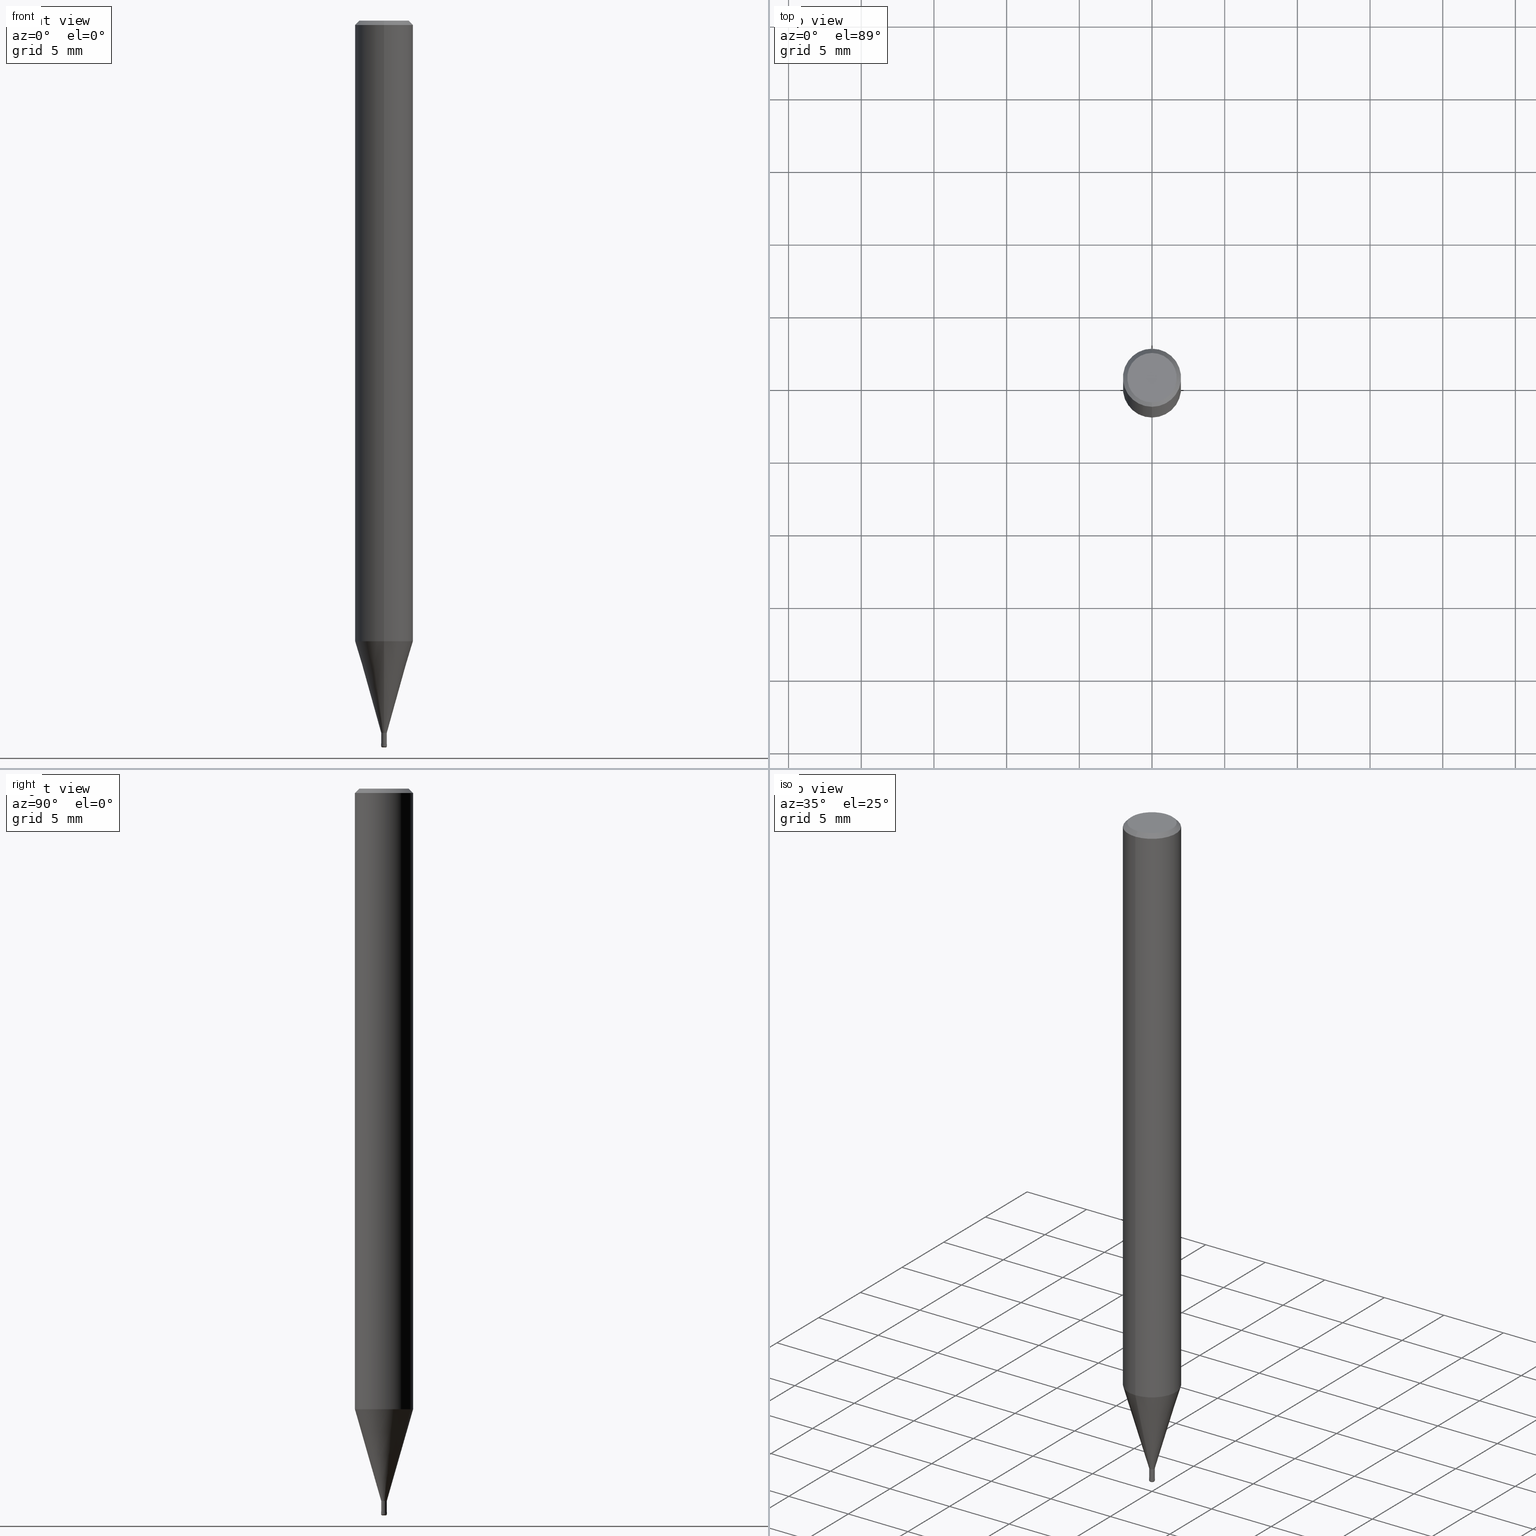
[diagram: canonical four-view strip — front | top / right | iso, engineering-drawing reading convention]
A machine part, canonical four-view strip (front | top / right | iso — engineering-drawing reading convention). The complete STEP part file that produces these views, byte-faithful:
ISO-10303-21;
HEADER;
FILE_DESCRIPTION(('no description'),'unknown implementation level');
FILE_NAME('HLRS4004-01-010-Huellk.stp','  ',('CIMSOURCE GmbH'),('CADClick - KiM GmbH - www.kimweb.de'),'unknown preprocess','ACIS','unknown authorization');
FILE_SCHEMA(('automotive_design'));
ENDSEC;
DATA;
#1=MECHANICAL_DESIGN_GEOMETRIC_PRESENTATION_REPRESENTATION(' ',(#14,#15,#16,#17,#18,#19,#20,#21,#22,#23,#24,#25,#26,#27,#28,#29,#30,#31,#32,#33,#34,#35,#36,#37,#38,#39,#40,#41,#42,#43,#44,#45,#46,#47,#48,#49,#50,#51,#52,#53,#54,#55,#56,#57,#58,#59,#60,#61,#62,#63,#64,#65,#66,#67,#68,#69,#70,#71,#72,#73,#74,#75,#76,#77,#78,#79,#80,#81,#82,#83,#84,#85,#86,#87,#88,#89,#90,#91,#92,#93,#94,#95,#96,#97,#98,#99,#100,#101,#102,#103,#104,#105,#106,#107,#108,#109,#110,#111,#112,#113,#114,#115,#116,#117,#118,#119,#120,#121),#10);
#2=PRODUCT_DEFINITION_CONTEXT('',#122,'design');
#3=APPLICATION_PROTOCOL_DEFINITION('INTERNATIONAL STANDARD','automotive_design',1994,#122);
#4=PRODUCT_CATEGORY_RELATIONSHIP('NONE','NONE',#123,#124);
#5=SHAPE_DEFINITION_REPRESENTATION(#125,#126);
#6=PRODUCT_DEFINITION_CONTEXT('',#127,'design');
#7=APPLICATION_PROTOCOL_DEFINITION('INTERNATIONAL STANDARD','automotive_design',1994,#127);
#8=PRODUCT_CATEGORY_RELATIONSHIP('NONE','NONE',#128,#129);
#9=SHAPE_DEFINITION_REPRESENTATION(#130,#131);
#10= (GEOMETRIC_REPRESENTATION_CONTEXT(3)GLOBAL_UNCERTAINTY_ASSIGNED_CONTEXT((#134))GLOBAL_UNIT_ASSIGNED_CONTEXT((#136,#137,#138))REPRESENTATION_CONTEXT('NONE','WORKSPACE'));
#14=STYLED_ITEM('',(#140),#141);
#15=STYLED_ITEM('',(#142),#143);
#16=STYLED_ITEM('',(#144),#145);
#17=STYLED_ITEM('',(#146),#147);
#18=STYLED_ITEM('',(#148),#149);
#19=STYLED_ITEM('',(#150),#151);
#20=STYLED_ITEM('',(#152),#153);
#21=STYLED_ITEM('',(#154),#155);
#22=STYLED_ITEM('',(#156),#157);
#23=STYLED_ITEM('',(#158),#159);
#24=STYLED_ITEM('',(#160),#161);
#25=STYLED_ITEM('',(#162),#163);
#26=STYLED_ITEM('',(#164),#165);
#27=STYLED_ITEM('',(#166),#167);
#28=STYLED_ITEM('',(#168),#169);
#29=STYLED_ITEM('',(#170),#171);
#30=STYLED_ITEM('',(#172),#173);
#31=STYLED_ITEM('',(#174),#175);
#32=STYLED_ITEM('',(#176),#177);
#33=STYLED_ITEM('',(#178),#179);
#34=STYLED_ITEM('',(#180),#181);
#35=STYLED_ITEM('',(#182),#183);
#36=STYLED_ITEM('',(#184),#185);
#37=STYLED_ITEM('',(#186),#187);
#38=STYLED_ITEM('',(#188),#189);
#39=STYLED_ITEM('',(#190),#191);
#40=STYLED_ITEM('',(#192),#193);
#41=STYLED_ITEM('',(#194),#195);
#42=STYLED_ITEM('',(#196),#197);
#43=STYLED_ITEM('',(#198),#199);
#44=STYLED_ITEM('',(#200),#201);
#45=STYLED_ITEM('',(#202),#203);
#46=STYLED_ITEM('',(#204),#205);
#47=STYLED_ITEM('',(#206),#207);
#48=STYLED_ITEM('',(#208),#209);
#49=STYLED_ITEM('',(#210),#211);
#50=STYLED_ITEM('',(#212),#213);
#51=STYLED_ITEM('',(#214),#215);
#52=STYLED_ITEM('',(#216),#217);
#53=STYLED_ITEM('',(#218),#219);
#54=STYLED_ITEM('',(#220),#221);
#55=STYLED_ITEM('',(#222),#223);
#56=STYLED_ITEM('',(#224),#225);
#57=STYLED_ITEM('',(#226),#227);
#58=STYLED_ITEM('',(#228),#229);
#59=STYLED_ITEM('',(#230),#231);
#60=STYLED_ITEM('',(#232),#233);
#61=STYLED_ITEM('',(#234),#235);
#62=STYLED_ITEM('',(#236),#237);
#63=STYLED_ITEM('',(#238),#239);
#64=STYLED_ITEM('',(#240),#241);
#65=STYLED_ITEM('',(#242),#243);
#66=STYLED_ITEM('',(#244),#245);
#67=STYLED_ITEM('',(#246),#247);
#68=STYLED_ITEM('',(#248),#249);
#69=STYLED_ITEM('',(#250),#251);
#70=STYLED_ITEM('',(#252),#253);
#71=STYLED_ITEM('',(#254),#255);
#72=STYLED_ITEM('',(#256),#257);
#73=STYLED_ITEM('',(#258),#259);
#74=STYLED_ITEM('',(#260),#261);
#75=STYLED_ITEM('',(#262),#263);
#76=STYLED_ITEM('',(#264),#265);
#77=STYLED_ITEM('',(#266),#267);
#78=STYLED_ITEM('',(#268),#269);
#79=STYLED_ITEM('',(#270),#271);
#80=STYLED_ITEM('',(#272),#273);
#81=STYLED_ITEM('',(#274),#275);
#82=STYLED_ITEM('',(#276),#277);
#83=STYLED_ITEM('',(#278),#279);
#84=STYLED_ITEM('',(#280),#281);
#85=STYLED_ITEM('',(#282),#283);
#86=STYLED_ITEM('',(#284),#285);
#87=STYLED_ITEM('',(#286),#287);
#88=STYLED_ITEM('',(#288),#289);
#89=STYLED_ITEM('',(#290),#291);
#90=STYLED_ITEM('',(#292),#293);
#91=STYLED_ITEM('',(#294),#295);
#92=STYLED_ITEM('',(#296),#297);
#93=STYLED_ITEM('',(#298),#299);
#94=STYLED_ITEM('',(#300),#301);
#95=STYLED_ITEM('',(#302),#303);
#96=STYLED_ITEM('',(#304),#305);
#97=STYLED_ITEM('',(#306),#307);
#98=STYLED_ITEM('',(#308),#309);
#99=STYLED_ITEM('',(#310),#311);
#100=STYLED_ITEM('',(#312),#313);
#101=STYLED_ITEM('',(#314),#315);
#102=STYLED_ITEM('',(#316),#317);
#103=STYLED_ITEM('',(#318),#319);
#104=STYLED_ITEM('',(#320),#321);
#105=STYLED_ITEM('',(#322),#323);
#106=STYLED_ITEM('',(#324),#325);
#107=STYLED_ITEM('',(#326),#327);
#108=STYLED_ITEM('',(#328),#329);
#109=STYLED_ITEM('',(#330),#331);
#110=STYLED_ITEM('',(#332),#333);
#111=STYLED_ITEM('',(#334),#335);
#112=STYLED_ITEM('',(#336),#337);
#113=STYLED_ITEM('',(#338),#339);
#114=STYLED_ITEM('',(#340),#341);
#115=STYLED_ITEM('',(#342),#343);
#116=STYLED_ITEM('',(#344),#345);
#117=STYLED_ITEM('',(#346),#347);
#118=STYLED_ITEM('',(#348),#349);
#119=STYLED_ITEM('',(#350),#351);
#120=STYLED_ITEM('',(#352),#353);
#121=STYLED_ITEM('',(#354),#355);
#122=APPLICATION_CONTEXT(' ');
#123=PRODUCT_CATEGORY('part','NONE');
#124=PRODUCT_RELATED_PRODUCT_CATEGORY('detail',' ',(#356));
#125=PRODUCT_DEFINITION_SHAPE('NONE','NONE',#357);
#126=ADVANCED_BREP_SHAPE_REPRESENTATION('1',(#153,#358),#10);
#127=APPLICATION_CONTEXT(' ');
#128=PRODUCT_CATEGORY('part','NONE');
#129=PRODUCT_RELATED_PRODUCT_CATEGORY('detail',' ',(#359));
#130=PRODUCT_DEFINITION_SHAPE('NONE','NONE',#360);
#131=ADVANCED_BREP_SHAPE_REPRESENTATION('2',(#329,#361),#10);
#134=UNCERTAINTY_MEASURE_WITH_UNIT(LENGTH_MEASURE(1.0E-006),#136,'','');
#136= (CONVERSION_BASED_UNIT('MILLIMETRE',#364)LENGTH_UNIT()NAMED_UNIT(#367));
#137= (NAMED_UNIT(#369)PLANE_ANGLE_UNIT()SI_UNIT($,.RADIAN.));
#138= (NAMED_UNIT(#369)SOLID_ANGLE_UNIT()SI_UNIT($,.STERADIAN.));
#140=PRESENTATION_STYLE_ASSIGNMENT((#375));
#141=ADVANCED_FACE('',(#376),#377,.T.);
#142=PRESENTATION_STYLE_ASSIGNMENT((#378));
#143=ADVANCED_FACE('',(#379),#380,.F.);
#144=PRESENTATION_STYLE_ASSIGNMENT((#381));
#145=VERTEX_POINT('',#382);
#146=PRESENTATION_STYLE_ASSIGNMENT((#383));
#147=ADVANCED_FACE('',(#384),#385,.T.);
#148=PRESENTATION_STYLE_ASSIGNMENT((#386));
#149=EDGE_CURVE('',#145,#241,#387,.T.);
#150=PRESENTATION_STYLE_ASSIGNMENT((#388));
#151=VERTEX_POINT('',#389);
#152=PRESENTATION_STYLE_ASSIGNMENT((#390));
#153=MANIFOLD_SOLID_BREP('1',#391);
#154=PRESENTATION_STYLE_ASSIGNMENT((#392));
#155=EDGE_CURVE('',#317,#229,#393,.T.);
#156=PRESENTATION_STYLE_ASSIGNMENT((#394));
#157=VERTEX_POINT('',#395);
#158=PRESENTATION_STYLE_ASSIGNMENT((#396));
#159=VERTEX_POINT('',#397);
#160=PRESENTATION_STYLE_ASSIGNMENT((#398));
#161=VERTEX_POINT('',#399);
#162=PRESENTATION_STYLE_ASSIGNMENT((#400));
#163=EDGE_CURVE('',#159,#207,#401,.T.);
#164=PRESENTATION_STYLE_ASSIGNMENT((#402));
#165=EDGE_CURVE('',#225,#161,#403,.T.);
#166=PRESENTATION_STYLE_ASSIGNMENT((#404));
#167=ADVANCED_FACE('',(#405),#406,.T.);
#168=PRESENTATION_STYLE_ASSIGNMENT((#407));
#169=ADVANCED_FACE('',(#408),#409,.T.);
#170=PRESENTATION_STYLE_ASSIGNMENT((#410));
#171=EDGE_CURVE('',#223,#159,#411,.T.);
#172=PRESENTATION_STYLE_ASSIGNMENT((#412));
#173=EDGE_CURVE('',#189,#281,#413,.T.);
#174=PRESENTATION_STYLE_ASSIGNMENT((#414));
#175=EDGE_CURVE('',#311,#177,#415,.T.);
#176=PRESENTATION_STYLE_ASSIGNMENT((#416));
#177=VERTEX_POINT('',#417);
#178=PRESENTATION_STYLE_ASSIGNMENT((#418));
#179=EDGE_CURVE('',#205,#225,#419,.T.);
#180=PRESENTATION_STYLE_ASSIGNMENT((#420));
#181=EDGE_CURVE('',#315,#327,#421,.T.);
#182=PRESENTATION_STYLE_ASSIGNMENT((#422));
#183=EDGE_CURVE('',#345,#253,#423,.T.);
#184=PRESENTATION_STYLE_ASSIGNMENT((#424));
#185=EDGE_CURVE('',#223,#157,#425,.T.);
#186=PRESENTATION_STYLE_ASSIGNMENT((#426));
#187=EDGE_CURVE('',#207,#157,#427,.T.);
#188=PRESENTATION_STYLE_ASSIGNMENT((#428));
#189=VERTEX_POINT('',#429);
#190=PRESENTATION_STYLE_ASSIGNMENT((#430));
#191=EDGE_CURVE('',#145,#265,#431,.T.);
#192=PRESENTATION_STYLE_ASSIGNMENT((#432));
#193=EDGE_CURVE('',#249,#275,#433,.T.);
#194=PRESENTATION_STYLE_ASSIGNMENT((#434));
#195=ADVANCED_FACE('',(#435,#436),#437,.T.);
#196=PRESENTATION_STYLE_ASSIGNMENT((#438));
#197=ADVANCED_FACE('',(#439),#440,.T.);
#198=PRESENTATION_STYLE_ASSIGNMENT((#441));
#199=EDGE_CURVE('',#225,#205,#442,.T.);
#200=PRESENTATION_STYLE_ASSIGNMENT((#443));
#201=EDGE_CURVE('',#253,#225,#444,.T.);
#202=PRESENTATION_STYLE_ASSIGNMENT((#445));
#203=EDGE_CURVE('',#189,#273,#446,.T.);
#204=PRESENTATION_STYLE_ASSIGNMENT((#447));
#205=VERTEX_POINT('',#448);
#206=PRESENTATION_STYLE_ASSIGNMENT((#449));
#207=VERTEX_POINT('',#450);
#208=PRESENTATION_STYLE_ASSIGNMENT((#451));
#209=VERTEX_POINT('',#452);
#210=PRESENTATION_STYLE_ASSIGNMENT((#453));
#211=EDGE_CURVE('',#275,#145,#454,.T.);
#212=PRESENTATION_STYLE_ASSIGNMENT((#455));
#213=EDGE_CURVE('',#265,#249,#456,.T.);
#214=PRESENTATION_STYLE_ASSIGNMENT((#457));
#215=EDGE_CURVE('',#207,#159,#458,.T.);
#216=PRESENTATION_STYLE_ASSIGNMENT((#459));
#217=ADVANCED_FACE('',(#460),#461,.T.);
#218=PRESENTATION_STYLE_ASSIGNMENT((#462));
#219=EDGE_CURVE('',#281,#307,#463,.T.);
#220=PRESENTATION_STYLE_ASSIGNMENT((#464));
#221=ADVANCED_FACE('',(#465),#466,.T.);
#222=PRESENTATION_STYLE_ASSIGNMENT((#467));
#223=VERTEX_POINT('',#468);
#224=PRESENTATION_STYLE_ASSIGNMENT((#469));
#225=VERTEX_POINT('',#470);
#226=PRESENTATION_STYLE_ASSIGNMENT((#471));
#227=EDGE_CURVE('',#307,#281,#472,.T.);
#228=PRESENTATION_STYLE_ASSIGNMENT((#473));
#229=VERTEX_POINT('',#474);
#230=PRESENTATION_STYLE_ASSIGNMENT((#475));
#231=ADVANCED_FACE('',(#476,#477),#478,.T.);
#232=PRESENTATION_STYLE_ASSIGNMENT((#479));
#233=EDGE_CURVE('',#311,#151,#480,.T.);
#234=PRESENTATION_STYLE_ASSIGNMENT((#481));
#235=ADVANCED_FACE('',(#482,#483),#484,.T.);
#236=PRESENTATION_STYLE_ASSIGNMENT((#485));
#237=VERTEX_POINT('',#486);
#238=PRESENTATION_STYLE_ASSIGNMENT((#487));
#239=ADVANCED_FACE('',(#488),#489,.T.);
#240=PRESENTATION_STYLE_ASSIGNMENT((#490));
#241=VERTEX_POINT('',#491);
#242=PRESENTATION_STYLE_ASSIGNMENT((#492));
#243=ADVANCED_FACE('',(#493),#494,.T.);
#244=PRESENTATION_STYLE_ASSIGNMENT((#495));
#245=EDGE_CURVE('',#307,#273,#496,.T.);
#246=PRESENTATION_STYLE_ASSIGNMENT((#497));
#247=ADVANCED_FACE('',(#498),#499,.F.);
#248=PRESENTATION_STYLE_ASSIGNMENT((#500));
#249=VERTEX_POINT('',#501);
#250=PRESENTATION_STYLE_ASSIGNMENT((#502));
#251=EDGE_CURVE('',#145,#275,#503,.T.);
#252=PRESENTATION_STYLE_ASSIGNMENT((#504));
#253=VERTEX_POINT('',#505);
#254=PRESENTATION_STYLE_ASSIGNMENT((#506));
#255=EDGE_CURVE('',#273,#237,#507,.T.);
#256=PRESENTATION_STYLE_ASSIGNMENT((#508));
#257=ADVANCED_FACE('',(#509),#510,.T.);
#258=PRESENTATION_STYLE_ASSIGNMENT((#511));
#259=EDGE_CURVE('',#229,#317,#512,.T.);
#260=PRESENTATION_STYLE_ASSIGNMENT((#513));
#261=EDGE_CURVE('',#157,#223,#514,.T.);
#262=PRESENTATION_STYLE_ASSIGNMENT((#515));
#263=ADVANCED_FACE('',(#516),#517,.T.);
#264=PRESENTATION_STYLE_ASSIGNMENT((#518));
#265=VERTEX_POINT('',#519);
#266=PRESENTATION_STYLE_ASSIGNMENT((#520));
#267=EDGE_CURVE('',#161,#349,#521,.T.);
#268=PRESENTATION_STYLE_ASSIGNMENT((#522));
#269=EDGE_CURVE('',#349,#205,#523,.T.);
#270=PRESENTATION_STYLE_ASSIGNMENT((#524));
#271=EDGE_CURVE('',#303,#275,#525,.T.);
#272=PRESENTATION_STYLE_ASSIGNMENT((#526));
#273=VERTEX_POINT('',#527);
#274=PRESENTATION_STYLE_ASSIGNMENT((#528));
#275=VERTEX_POINT('',#529);
#276=PRESENTATION_STYLE_ASSIGNMENT((#530));
#277=ADVANCED_FACE('',(#531,#532),#533,.T.);
#278=PRESENTATION_STYLE_ASSIGNMENT((#534));
#279=ADVANCED_FACE('',(#535),#536,.T.);
#280=PRESENTATION_STYLE_ASSIGNMENT((#537));
#281=VERTEX_POINT('',#538);
#282=PRESENTATION_STYLE_ASSIGNMENT((#539));
#283=ADVANCED_FACE('',(#540),#541,.T.);
#284=PRESENTATION_STYLE_ASSIGNMENT((#542));
#285=EDGE_CURVE('',#273,#189,#543,.T.);
#286=PRESENTATION_STYLE_ASSIGNMENT((#544));
#287=EDGE_CURVE('',#349,#161,#545,.T.);
#288=PRESENTATION_STYLE_ASSIGNMENT((#546));
#289=ADVANCED_FACE('',(#547),#548,.F.);
#290=PRESENTATION_STYLE_ASSIGNMENT((#549));
#291=EDGE_CURVE('',#343,#189,#550,.T.);
#292=PRESENTATION_STYLE_ASSIGNMENT((#551));
#293=ADVANCED_FACE('',(#552),#553,.T.);
#294=PRESENTATION_STYLE_ASSIGNMENT((#554));
#295=EDGE_CURVE('',#249,#265,#555,.T.);
#296=PRESENTATION_STYLE_ASSIGNMENT((#556));
#297=EDGE_CURVE('',#209,#177,#557,.T.);
#298=PRESENTATION_STYLE_ASSIGNMENT((#558));
#299=EDGE_CURVE('',#177,#209,#559,.T.);
#300=PRESENTATION_STYLE_ASSIGNMENT((#560));
#301=EDGE_CURVE('',#159,#327,#561,.T.);
#302=PRESENTATION_STYLE_ASSIGNMENT((#562));
#303=VERTEX_POINT('',#563);
#304=PRESENTATION_STYLE_ASSIGNMENT((#564));
#305=EDGE_CURVE('',#343,#237,#565,.T.);
#306=PRESENTATION_STYLE_ASSIGNMENT((#566));
#307=VERTEX_POINT('',#567);
#308=PRESENTATION_STYLE_ASSIGNMENT((#568));
#309=EDGE_CURVE('',#177,#229,#569,.T.);
#310=PRESENTATION_STYLE_ASSIGNMENT((#570));
#311=VERTEX_POINT('',#571);
#312=PRESENTATION_STYLE_ASSIGNMENT((#572));
#313=ADVANCED_FACE('',(#573),#574,.T.);
#314=PRESENTATION_STYLE_ASSIGNMENT((#575));
#315=VERTEX_POINT('',#576);
#316=PRESENTATION_STYLE_ASSIGNMENT((#577));
#317=VERTEX_POINT('',#578);
#318=PRESENTATION_STYLE_ASSIGNMENT((#579));
#319=EDGE_CURVE('',#209,#151,#580,.T.);
#320=PRESENTATION_STYLE_ASSIGNMENT((#581));
#321=EDGE_CURVE('',#315,#207,#582,.T.);
#322=PRESENTATION_STYLE_ASSIGNMENT((#583));
#323=EDGE_CURVE('',#151,#311,#584,.T.);
#324=PRESENTATION_STYLE_ASSIGNMENT((#585));
#325=ADVANCED_FACE('',(#586),#587,.T.);
#326=PRESENTATION_STYLE_ASSIGNMENT((#588));
#327=VERTEX_POINT('',#589);
#328=PRESENTATION_STYLE_ASSIGNMENT((#590));
#329=MANIFOLD_SOLID_BREP('2',#591);
#330=PRESENTATION_STYLE_ASSIGNMENT((#592));
#331=ADVANCED_FACE('',(#593),#594,.F.);
#332=PRESENTATION_STYLE_ASSIGNMENT((#595));
#333=ADVANCED_FACE('',(#596),#597,.T.);
#334=PRESENTATION_STYLE_ASSIGNMENT((#598));
#335=EDGE_CURVE('',#317,#209,#599,.T.);
#336=PRESENTATION_STYLE_ASSIGNMENT((#600));
#337=EDGE_CURVE('',#303,#241,#601,.T.);
#338=PRESENTATION_STYLE_ASSIGNMENT((#602));
#339=EDGE_CURVE('',#327,#315,#603,.T.);
#340=PRESENTATION_STYLE_ASSIGNMENT((#604));
#341=EDGE_CURVE('',#237,#343,#605,.T.);
#342=PRESENTATION_STYLE_ASSIGNMENT((#606));
#343=VERTEX_POINT('',#607);
#344=PRESENTATION_STYLE_ASSIGNMENT((#608));
#345=VERTEX_POINT('',#609);
#346=PRESENTATION_STYLE_ASSIGNMENT((#610));
#347=ADVANCED_FACE('',(#611),#612,.T.);
#348=PRESENTATION_STYLE_ASSIGNMENT((#613));
#349=VERTEX_POINT('',#614);
#350=PRESENTATION_STYLE_ASSIGNMENT((#615));
#351=EDGE_CURVE('',#253,#345,#616,.T.);
#352=PRESENTATION_STYLE_ASSIGNMENT((#617));
#353=EDGE_CURVE('',#241,#303,#618,.T.);
#354=PRESENTATION_STYLE_ASSIGNMENT((#619));
#355=EDGE_CURVE('',#205,#345,#620,.T.);
#356=PRODUCT('1','1','PART-1-DESC',(#621));
#357=PRODUCT_DEFINITION('NONE','NONE',#622,#2);
#358=AXIS2_PLACEMENT_3D('',#623,#624,#625);
#359=PRODUCT('2','2','PART-2-DESC',(#626));
#360=PRODUCT_DEFINITION('NONE','NONE',#627,#6);
#361=AXIS2_PLACEMENT_3D('',#628,#629,#630);
#364=LENGTH_MEASURE_WITH_UNIT(LENGTH_MEASURE(1.0),#631);
#367=DIMENSIONAL_EXPONENTS(1.0,0.0,0.0,0.0,0.0,0.0,0.0);
#369=DIMENSIONAL_EXPONENTS(0.0,0.0,0.0,0.0,0.0,0.0,0.0);
#375=SURFACE_STYLE_USAGE(.BOTH.,#632);
#376=FACE_OUTER_BOUND('',#633,.T.);
#377=PLANE('',#634);
#378=SURFACE_STYLE_USAGE(.BOTH.,#635);
#379=FACE_OUTER_BOUND('',#636,.T.);
#380=CONICAL_SURFACE('',#637,0.14245,1.47575464789401);
#381=POINT_STYLE(' ',#638,POSITIVE_LENGTH_MEASURE(1.0E-006),#639);
#382=CARTESIAN_POINT('',(2.44921270764476E-017,-0.2,-49.89));
#383=SURFACE_STYLE_USAGE(.BOTH.,#640);
#384=FACE_OUTER_BOUND('',#641,.T.);
#385=PLANE('',#642);
#386=CURVE_STYLE('',#643,POSITIVE_LENGTH_MEASURE(1.0E-006),#644);
#387=LINE('',#645,#646);
#388=POINT_STYLE(' ',#647,POSITIVE_LENGTH_MEASURE(1.0E-006),#648);
#389=CARTESIAN_POINT('',(2.38675778359981E-017,-0.1949,-49.75));
#390=SURFACE_STYLE_USAGE(.BOTH.,#649);
#391=CLOSED_SHELL('',(#283,#263,#239,#313,#217,#167,#277,#147,#257,#325,#221,#169,#195,#243,#279,#141));
#392=CURVE_STYLE('',#650,POSITIVE_LENGTH_MEASURE(1.0E-006),#651);
#393=CIRCLE('',#652,0.09);
#394=POINT_STYLE(' ',#653,POSITIVE_LENGTH_MEASURE(1.0E-006),#654);
#395=CARTESIAN_POINT('',(0.0,0.09,-49.93));
#396=POINT_STYLE(' ',#655,POSITIVE_LENGTH_MEASURE(1.0E-006),#656);
#397=CARTESIAN_POINT('',(1.10214571844014E-017,-0.09,-49.76));
#398=POINT_STYLE(' ',#657,POSITIVE_LENGTH_MEASURE(1.0E-006),#658);
#399=CARTESIAN_POINT('',(2.44915147732706E-016,-1.99995,-42.686));
#400=CURVE_STYLE('',#659,POSITIVE_LENGTH_MEASURE(1.0E-006),#660);
#401=CIRCLE('',#661,0.09);
#402=CURVE_STYLE('',#662,POSITIVE_LENGTH_MEASURE(1.0E-006),#663);
#403=LINE('',#664,#665);
#404=SURFACE_STYLE_USAGE(.BOTH.,#666);
#405=FACE_OUTER_BOUND('',#667,.T.);
#406=CONICAL_SURFACE('',#668,1.85,0.785398163397453);
#407=SURFACE_STYLE_USAGE(.BOTH.,#669);
#408=FACE_OUTER_BOUND('',#670,.T.);
#409=CYLINDRICAL_SURFACE('',#671,0.19245);
#410=CURVE_STYLE('',#672,POSITIVE_LENGTH_MEASURE(1.0E-006),#673);
#411=LINE('',#674,#675);
#412=CURVE_STYLE('',#676,POSITIVE_LENGTH_MEASURE(1.0E-006),#677);
#413=LINE('',#678,#679);
#414=CURVE_STYLE('',#680,POSITIVE_LENGTH_MEASURE(1.0E-006),#681);
#415=LINE('',#682,#683);
#416=POINT_STYLE(' ',#684,POSITIVE_LENGTH_MEASURE(1.0E-006),#685);
#417=CARTESIAN_POINT('',(0.0,0.09,-49.76));
#418=CURVE_STYLE('',#686,POSITIVE_LENGTH_MEASURE(1.0E-006),#687);
#419=CIRCLE('',#688,0.19245);
#420=CURVE_STYLE('',#689,POSITIVE_LENGTH_MEASURE(1.0E-006),#690);
#421=CIRCLE('',#691,0.19495);
#422=CURVE_STYLE('',#692,POSITIVE_LENGTH_MEASURE(1.0E-006),#693);
#423=CIRCLE('',#694,0.19245);
#424=CURVE_STYLE('',#695,POSITIVE_LENGTH_MEASURE(1.0E-006),#696);
#425=CIRCLE('',#697,0.09);
#426=CURVE_STYLE('',#698,POSITIVE_LENGTH_MEASURE(1.0E-006),#699);
#427=LINE('',#700,#701);
#428=POINT_STYLE(' ',#702,POSITIVE_LENGTH_MEASURE(1.0E-006),#703);
#429=CARTESIAN_POINT('',(0.0,2.0,-0.289999999999999));
#430=CURVE_STYLE('',#704,POSITIVE_LENGTH_MEASURE(1.0E-006),#705);
#431=CIRCLE('',#706,0.1);
#432=CURVE_STYLE('',#707,POSITIVE_LENGTH_MEASURE(1.0E-006),#708);
#433=CIRCLE('',#709,0.1);
#434=SURFACE_STYLE_USAGE(.BOTH.,#710);
#435=FACE_OUTER_BOUND('',#711,.T.);
#436=FACE_BOUND('',#712,.T.);
#437=PLANE('',#713);
#438=SURFACE_STYLE_USAGE(.BOTH.,#714);
#439=FACE_OUTER_BOUND('',#715,.T.);
#440=TOROIDAL_SURFACE('',#716,0.1,0.1);
#441=CURVE_STYLE('',#717,POSITIVE_LENGTH_MEASURE(1.0E-006),#718);
#442=CIRCLE('',#719,0.19245);
#443=CURVE_STYLE('',#720,POSITIVE_LENGTH_MEASURE(1.0E-006),#721);
#444=LINE('',#722,#723);
#445=CURVE_STYLE('',#724,POSITIVE_LENGTH_MEASURE(1.0E-006),#725);
#446=CIRCLE('',#726,2.0);
#447=POINT_STYLE(' ',#727,POSITIVE_LENGTH_MEASURE(1.0E-006),#728);
#448=CARTESIAN_POINT('',(0.0,0.19245,-48.99));
#449=POINT_STYLE(' ',#729,POSITIVE_LENGTH_MEASURE(1.0E-006),#730);
#450=CARTESIAN_POINT('',(0.0,0.09,-49.76));
#451=POINT_STYLE(' ',#731,POSITIVE_LENGTH_MEASURE(1.0E-006),#732);
#452=CARTESIAN_POINT('',(1.10214571844014E-017,-0.09,-49.76));
#453=CURVE_STYLE('',#733,POSITIVE_LENGTH_MEASURE(1.0E-006),#734);
#454=CIRCLE('',#735,0.2);
#455=CURVE_STYLE('',#736,POSITIVE_LENGTH_MEASURE(1.0E-006),#737);
#456=CIRCLE('',#738,0.1);
#457=CURVE_STYLE('',#739,POSITIVE_LENGTH_MEASURE(1.0E-006),#740);
#458=CIRCLE('',#741,0.09);
#459=SURFACE_STYLE_USAGE(.BOTH.,#742);
#460=FACE_OUTER_BOUND('',#743,.T.);
#461=CYLINDRICAL_SURFACE('',#744,2.0);
#462=CURVE_STYLE('',#745,POSITIVE_LENGTH_MEASURE(1.0E-006),#746);
#463=CIRCLE('',#747,2.0);
#464=SURFACE_STYLE_USAGE(.BOTH.,#748);
#465=FACE_OUTER_BOUND('',#749,.T.);
#466=CONICAL_SURFACE('',#750,1.0962,0.279231732547063);
#467=POINT_STYLE(' ',#751,POSITIVE_LENGTH_MEASURE(1.0E-006),#752);
#468=CARTESIAN_POINT('',(1.10214571844014E-017,-0.09,-49.93));
#469=POINT_STYLE(' ',#753,POSITIVE_LENGTH_MEASURE(1.0E-006),#754);
#470=CARTESIAN_POINT('',(2.35675492793117E-017,-0.19245,-48.99));
#471=CURVE_STYLE('',#755,POSITIVE_LENGTH_MEASURE(1.0E-006),#756);
#472=CIRCLE('',#757,2.0);
#473=POINT_STYLE(' ',#758,POSITIVE_LENGTH_MEASURE(1.0E-006),#759);
#474=CARTESIAN_POINT('',(0.0,0.09,-49.99));
#475=SURFACE_STYLE_USAGE(.BOTH.,#760);
#476=FACE_BOUND('',#761,.T.);
#477=FACE_OUTER_BOUND('',#762,.T.);
#478=PLANE('',#763);
#479=CURVE_STYLE('',#764,POSITIVE_LENGTH_MEASURE(1.0E-006),#765);
#480=CIRCLE('',#766,0.1949);
#481=SURFACE_STYLE_USAGE(.BOTH.,#767);
#482=FACE_OUTER_BOUND('',#768,.T.);
#483=FACE_BOUND('',#769,.T.);
#484=PLANE('',#770);
#485=POINT_STYLE(' ',#771,POSITIVE_LENGTH_MEASURE(1.0E-006),#772);
#486=CARTESIAN_POINT('',(2.08183080149804E-016,-1.7,0.00999999999999801));
#487=SURFACE_STYLE_USAGE(.BOTH.,#773);
#488=FACE_OUTER_BOUND('',#774,.T.);
#489=CYLINDRICAL_SURFACE('',#775,0.19245);
#490=POINT_STYLE(' ',#776,POSITIVE_LENGTH_MEASURE(1.0E-006),#777);
#491=CARTESIAN_POINT('',(2.44798810129093E-017,-0.1999,-49.75));
#492=SURFACE_STYLE_USAGE(.BOTH.,#778);
#493=FACE_OUTER_BOUND('',#779,.T.);
#494=CONICAL_SURFACE('',#780,0.142475,1.47579965541249);
#495=CURVE_STYLE('',#781,POSITIVE_LENGTH_MEASURE(1.0E-006),#782);
#496=LINE('',#783,#784);
#497=SURFACE_STYLE_USAGE(.BOTH.,#785);
#498=FACE_OUTER_BOUND('',#786,.T.);
#499=CONICAL_SURFACE('',#787,0.14245,1.47575464789401);
#500=POINT_STYLE(' ',#788,POSITIVE_LENGTH_MEASURE(1.0E-006),#789);
#501=CARTESIAN_POINT('',(0.0,0.1,-49.99));
#502=CURVE_STYLE('',#790,POSITIVE_LENGTH_MEASURE(1.0E-006),#791);
#503=CIRCLE('',#792,0.2);
#504=POINT_STYLE(' ',#793,POSITIVE_LENGTH_MEASURE(1.0E-006),#794);
#505=CARTESIAN_POINT('',(2.35675492793117E-017,-0.19245,-49.75));
#506=CURVE_STYLE('',#795,POSITIVE_LENGTH_MEASURE(1.0E-006),#796);
#507=LINE('',#797,#798);
#508=SURFACE_STYLE_USAGE(.BOTH.,#799);
#509=FACE_OUTER_BOUND('',#800,.T.);
#510=CONICAL_SURFACE('',#801,1.85,0.785398163397453);
#511=CURVE_STYLE('',#802,POSITIVE_LENGTH_MEASURE(1.0E-006),#803);
#512=CIRCLE('',#804,0.09);
#513=CURVE_STYLE('',#805,POSITIVE_LENGTH_MEASURE(1.0E-006),#806);
#514=CIRCLE('',#807,0.09);
#515=SURFACE_STYLE_USAGE(.BOTH.,#808);
#516=FACE_OUTER_BOUND('',#809,.T.);
#517=CONICAL_SURFACE('',#810,0.142475,1.47579965541249);
#518=POINT_STYLE(' ',#811,POSITIVE_LENGTH_MEASURE(1.0E-006),#812);
#519=CARTESIAN_POINT('',(1.22460635382238E-017,-0.1,-49.99));
#520=CURVE_STYLE('',#813,POSITIVE_LENGTH_MEASURE(1.0E-006),#814);
#521=CIRCLE('',#815,1.99995);
#522=CURVE_STYLE('',#816,POSITIVE_LENGTH_MEASURE(1.0E-006),#817);
#523=LINE('',#818,#819);
#524=CURVE_STYLE('',#820,POSITIVE_LENGTH_MEASURE(1.0E-006),#821);
#525=LINE('',#822,#823);
#526=POINT_STYLE(' ',#824,POSITIVE_LENGTH_MEASURE(1.0E-006),#825);
#527=CARTESIAN_POINT('',(2.44921270764475E-016,-2.0,-0.289999999999999));
#528=POINT_STYLE(' ',#826,POSITIVE_LENGTH_MEASURE(1.0E-006),#827);
#529=CARTESIAN_POINT('',(0.0,0.2,-49.89));
#530=SURFACE_STYLE_USAGE(.BOTH.,#828);
#531=FACE_OUTER_BOUND('',#829,.T.);
#532=FACE_BOUND('',#830,.T.);
#533=PLANE('',#831);
#534=SURFACE_STYLE_USAGE(.BOTH.,#832);
#535=FACE_OUTER_BOUND('',#833,.T.);
#536=CYLINDRICAL_SURFACE('',#834,0.09);
#537=POINT_STYLE(' ',#835,POSITIVE_LENGTH_MEASURE(1.0E-006),#836);
#538=CARTESIAN_POINT('',(0.0,2.0,-42.686));
#539=SURFACE_STYLE_USAGE(.BOTH.,#837);
#540=FACE_OUTER_BOUND('',#838,.T.);
#541=CYLINDRICAL_SURFACE('',#839,0.09);
#542=CURVE_STYLE('',#840,POSITIVE_LENGTH_MEASURE(1.0E-006),#841);
#543=CIRCLE('',#842,2.0);
#544=CURVE_STYLE('',#843,POSITIVE_LENGTH_MEASURE(1.0E-006),#844);
#545=CIRCLE('',#845,1.99995);
#546=SURFACE_STYLE_USAGE(.BOTH.,#846);
#547=FACE_OUTER_BOUND('',#847,.T.);
#548=CYLINDRICAL_SURFACE('',#848,0.09);
#549=CURVE_STYLE('',#849,POSITIVE_LENGTH_MEASURE(1.0E-006),#850);
#550=LINE('',#851,#852);
#551=SURFACE_STYLE_USAGE(.BOTH.,#853);
#552=FACE_OUTER_BOUND('',#854,.T.);
#553=CONICAL_SURFACE('',#855,0.19995,0.000714285592808709);
#554=CURVE_STYLE('',#856,POSITIVE_LENGTH_MEASURE(1.0E-006),#857);
#555=CIRCLE('',#858,0.1);
#556=CURVE_STYLE('',#859,POSITIVE_LENGTH_MEASURE(1.0E-006),#860);
#557=CIRCLE('',#861,0.09);
#558=CURVE_STYLE('',#862,POSITIVE_LENGTH_MEASURE(1.0E-006),#863);
#559=CIRCLE('',#864,0.09);
#560=CURVE_STYLE('',#865,POSITIVE_LENGTH_MEASURE(1.0E-006),#866);
#561=LINE('',#867,#868);
#562=POINT_STYLE(' ',#869,POSITIVE_LENGTH_MEASURE(1.0E-006),#870);
#563=CARTESIAN_POINT('',(0.0,0.1999,-49.75));
#564=CURVE_STYLE('',#871,POSITIVE_LENGTH_MEASURE(1.0E-006),#872);
#565=CIRCLE('',#873,1.7);
#566=POINT_STYLE(' ',#874,POSITIVE_LENGTH_MEASURE(1.0E-006),#875);
#567=CARTESIAN_POINT('',(2.44921270764475E-016,-2.0,-42.686));
#568=CURVE_STYLE('',#876,POSITIVE_LENGTH_MEASURE(1.0E-006),#877);
#569=LINE('',#878,#879);
#570=POINT_STYLE(' ',#880,POSITIVE_LENGTH_MEASURE(1.0E-006),#881);
#571=CARTESIAN_POINT('',(0.0,0.1949,-49.75));
#572=SURFACE_STYLE_USAGE(.BOTH.,#882);
#573=FACE_OUTER_BOUND('',#883,.T.);
#574=CONICAL_SURFACE('',#884,1.0962,0.279231732547063);
#575=POINT_STYLE(' ',#885,POSITIVE_LENGTH_MEASURE(1.0E-006),#886);
#576=CARTESIAN_POINT('',(0.0,0.19495,-49.75));
#577=POINT_STYLE(' ',#887,POSITIVE_LENGTH_MEASURE(1.0E-006),#888);
#578=CARTESIAN_POINT('',(1.10214571844014E-017,-0.09,-49.99));
#579=CURVE_STYLE('',#889,POSITIVE_LENGTH_MEASURE(1.0E-006),#890);
#580=LINE('',#891,#892);
#581=CURVE_STYLE('',#893,POSITIVE_LENGTH_MEASURE(1.0E-006),#894);
#582=LINE('',#895,#896);
#583=CURVE_STYLE('',#897,POSITIVE_LENGTH_MEASURE(1.0E-006),#898);
#584=CIRCLE('',#899,0.1949);
#585=SURFACE_STYLE_USAGE(.BOTH.,#900);
#586=FACE_OUTER_BOUND('',#901,.T.);
#587=CYLINDRICAL_SURFACE('',#902,2.0);
#588=POINT_STYLE(' ',#903,POSITIVE_LENGTH_MEASURE(1.0E-006),#904);
#589=CARTESIAN_POINT('',(2.38737008677672E-017,-0.19495,-49.75));
#590=SURFACE_STYLE_USAGE(.BOTH.,#905);
#591=CLOSED_SHELL('',(#289,#347,#293,#143,#247,#235,#333,#197,#231,#331));
#592=SURFACE_STYLE_USAGE(.BOTH.,#906);
#593=FACE_OUTER_BOUND('',#907,.T.);
#594=CYLINDRICAL_SURFACE('',#908,0.09);
#595=SURFACE_STYLE_USAGE(.BOTH.,#909);
#596=FACE_OUTER_BOUND('',#910,.T.);
#597=CONICAL_SURFACE('',#911,0.19995,0.000714285592808709);
#598=CURVE_STYLE('',#912,POSITIVE_LENGTH_MEASURE(1.0E-006),#913);
#599=LINE('',#914,#915);
#600=CURVE_STYLE('',#916,POSITIVE_LENGTH_MEASURE(1.0E-006),#917);
#601=CIRCLE('',#918,0.1999);
#602=CURVE_STYLE('',#919,POSITIVE_LENGTH_MEASURE(1.0E-006),#920);
#603=CIRCLE('',#921,0.19495);
#604=CURVE_STYLE('',#922,POSITIVE_LENGTH_MEASURE(1.0E-006),#923);
#605=CIRCLE('',#924,1.7);
#606=POINT_STYLE(' ',#925,POSITIVE_LENGTH_MEASURE(1.0E-006),#926);
#607=CARTESIAN_POINT('',(0.0,1.7,0.00999999999999801));
#608=POINT_STYLE(' ',#927,POSITIVE_LENGTH_MEASURE(1.0E-006),#928);
#609=CARTESIAN_POINT('',(0.0,0.19245,-49.75));
#610=SURFACE_STYLE_USAGE(.BOTH.,#929);
#611=FACE_OUTER_BOUND('',#930,.T.);
#612=TOROIDAL_SURFACE('',#931,0.1,0.1);
#613=POINT_STYLE(' ',#932,POSITIVE_LENGTH_MEASURE(1.0E-006),#933);
#614=CARTESIAN_POINT('',(0.0,1.99995,-42.686));
#615=CURVE_STYLE('',#934,POSITIVE_LENGTH_MEASURE(1.0E-006),#935);
#616=CIRCLE('',#936,0.19245);
#617=CURVE_STYLE('',#937,POSITIVE_LENGTH_MEASURE(1.0E-006),#938);
#618=CIRCLE('',#939,0.1999);
#619=CURVE_STYLE('',#940,POSITIVE_LENGTH_MEASURE(1.0E-006),#941);
#620=LINE('',#942,#943);
#621=PRODUCT_CONTEXT('',#122,'mechanical');
#622=PRODUCT_DEFINITION_FORMATION_WITH_SPECIFIED_SOURCE(' ','NONE',#356,.NOT_KNOWN.);
#623=CARTESIAN_POINT('',(0.0,0.0,0.0));
#624=DIRECTION('',(0.0,0.0,1.0));
#625=DIRECTION('',(1.0,0.0,0.0));
#626=PRODUCT_CONTEXT('',#127,'mechanical');
#627=PRODUCT_DEFINITION_FORMATION_WITH_SPECIFIED_SOURCE(' ','NONE',#359,.NOT_KNOWN.);
#628=CARTESIAN_POINT('',(0.0,0.0,0.0));
#629=DIRECTION('',(0.0,0.0,1.0));
#630=DIRECTION('',(1.0,0.0,0.0));
#631= (NAMED_UNIT(#367)LENGTH_UNIT()SI_UNIT(.MILLI.,.METRE.));
#632=SURFACE_SIDE_STYLE('',(#945));
#633=EDGE_LOOP('',(#946,#947));
#634=AXIS2_PLACEMENT_3D('',#948,#949,#950);
#635=SURFACE_SIDE_STYLE('',(#951));
#636=EDGE_LOOP('',(#952,#953,#954,#955));
#637=AXIS2_PLACEMENT_3D('',#956,#957,#958);
#638=PRE_DEFINED_MARKER('');
#639=COLOUR_RGB('',0.800000011920929,0.800000011920929,0.800000011920929);
#640=SURFACE_SIDE_STYLE('',(#959));
#641=EDGE_LOOP('',(#960,#961));
#642=AXIS2_PLACEMENT_3D('',#962,#963,#964);
#643=DRAUGHTING_PRE_DEFINED_CURVE_FONT('continuous');
#644=COLOUR_RGB('',0.800000011920929,0.800000011920929,0.800000011920929);
#645=CARTESIAN_POINT('',(2.44860040446784E-017,-0.19995,-49.82));
#646=VECTOR('',#965,1.0);
#647=PRE_DEFINED_MARKER('');
#648=COLOUR_RGB('',0.800000011920929,0.800000011920929,0.800000011920929);
#649=SURFACE_SIDE_STYLE('',(#966));
#650=DRAUGHTING_PRE_DEFINED_CURVE_FONT('continuous');
#651=COLOUR_RGB('',0.800000011920929,0.800000011920929,0.800000011920929);
#652=AXIS2_PLACEMENT_3D('',#967,#968,#969);
#653=PRE_DEFINED_MARKER('');
#654=COLOUR_RGB('',0.498039215803146,0.498039215803146,0.498039215803146);
#655=PRE_DEFINED_MARKER('');
#656=COLOUR_RGB('',0.498039215803146,0.498039215803146,0.498039215803146);
#657=PRE_DEFINED_MARKER('');
#658=COLOUR_RGB('',0.498039215803146,0.498039215803146,0.498039215803146);
#659=DRAUGHTING_PRE_DEFINED_CURVE_FONT('continuous');
#660=COLOUR_RGB('',0.498039215803146,0.498039215803146,0.498039215803146);
#661=AXIS2_PLACEMENT_3D('',#970,#971,#972);
#662=DRAUGHTING_PRE_DEFINED_CURVE_FONT('continuous');
#663=COLOUR_RGB('',0.498039215803146,0.498039215803146,0.498039215803146);
#664=CARTESIAN_POINT('',(1.34241348506009E-016,-1.0962,-45.838));
#665=VECTOR('',#973,1.0);
#666=SURFACE_SIDE_STYLE('',(#974));
#667=EDGE_LOOP('',(#975,#976,#977,#978));
#668=AXIS2_PLACEMENT_3D('',#979,#980,#981);
#669=SURFACE_SIDE_STYLE('',(#982));
#670=EDGE_LOOP('',(#983,#984,#985,#986));
#671=AXIS2_PLACEMENT_3D('',#987,#988,#989);
#672=DRAUGHTING_PRE_DEFINED_CURVE_FONT('continuous');
#673=COLOUR_RGB('',0.498039215803146,0.498039215803146,0.498039215803146);
#674=CARTESIAN_POINT('',(1.10214571844014E-017,-0.09,-49.845));
#675=VECTOR('',#990,1.0);
#676=DRAUGHTING_PRE_DEFINED_CURVE_FONT('continuous');
#677=COLOUR_RGB('',0.498039215803146,0.498039215803146,0.498039215803146);
#678=CARTESIAN_POINT('',(-2.44921270764475E-016,2.0,-21.488));
#679=VECTOR('',#991,1.0);
#680=DRAUGHTING_PRE_DEFINED_CURVE_FONT('continuous');
#681=COLOUR_RGB('',0.800000011920929,0.800000011920929,0.800000011920929);
#682=CARTESIAN_POINT('',(-1.74445175101998E-017,0.14245,-49.755));
#683=VECTOR('',#992,1.0);
#684=PRE_DEFINED_MARKER('');
#685=COLOUR_RGB('',0.800000011920929,0.800000011920929,0.800000011920929);
#686=DRAUGHTING_PRE_DEFINED_CURVE_FONT('continuous');
#687=COLOUR_RGB('',0.498039215803146,0.498039215803146,0.498039215803146);
#688=AXIS2_PLACEMENT_3D('',#993,#994,#995);
#689=DRAUGHTING_PRE_DEFINED_CURVE_FONT('continuous');
#690=COLOUR_RGB('',0.498039215803146,0.498039215803146,0.498039215803146);
#691=AXIS2_PLACEMENT_3D('',#996,#997,#998);
#692=DRAUGHTING_PRE_DEFINED_CURVE_FONT('continuous');
#693=COLOUR_RGB('',0.498039215803146,0.498039215803146,0.498039215803146);
#694=AXIS2_PLACEMENT_3D('',#999,#1000,#1001);
#695=DRAUGHTING_PRE_DEFINED_CURVE_FONT('continuous');
#696=COLOUR_RGB('',0.498039215803146,0.498039215803146,0.498039215803146);
#697=AXIS2_PLACEMENT_3D('',#1002,#1003,#1004);
#698=DRAUGHTING_PRE_DEFINED_CURVE_FONT('continuous');
#699=COLOUR_RGB('',0.498039215803146,0.498039215803146,0.498039215803146);
#700=CARTESIAN_POINT('',(-1.10214571844014E-017,0.09,-49.845));
#701=VECTOR('',#1005,1.0);
#702=PRE_DEFINED_MARKER('');
#703=COLOUR_RGB('',0.498039215803146,0.498039215803146,0.498039215803146);
#704=DRAUGHTING_PRE_DEFINED_CURVE_FONT('continuous');
#705=COLOUR_RGB('',0.800000011920929,0.800000011920929,0.800000011920929);
#706=AXIS2_PLACEMENT_3D('',#1006,#1007,#1008);
#707=DRAUGHTING_PRE_DEFINED_CURVE_FONT('continuous');
#708=COLOUR_RGB('',0.800000011920929,0.800000011920929,0.800000011920929);
#709=AXIS2_PLACEMENT_3D('',#1009,#1010,#1011);
#710=SURFACE_SIDE_STYLE('',(#1012));
#711=EDGE_LOOP('',(#1013,#1014));
#712=EDGE_LOOP('',(#1015,#1016));
#713=AXIS2_PLACEMENT_3D('',#1017,#1018,#1019);
#714=SURFACE_SIDE_STYLE('',(#1020));
#715=EDGE_LOOP('',(#1021,#1022,#1023,#1024));
#716=AXIS2_PLACEMENT_3D('',#1025,#1026,#1027);
#717=DRAUGHTING_PRE_DEFINED_CURVE_FONT('continuous');
#718=COLOUR_RGB('',0.498039215803146,0.498039215803146,0.498039215803146);
#719=AXIS2_PLACEMENT_3D('',#1028,#1029,#1030);
#720=DRAUGHTING_PRE_DEFINED_CURVE_FONT('continuous');
#721=COLOUR_RGB('',0.498039215803146,0.498039215803146,0.498039215803146);
#722=CARTESIAN_POINT('',(2.35675492793117E-017,-0.19245,-49.37));
#723=VECTOR('',#1031,1.0);
#724=DRAUGHTING_PRE_DEFINED_CURVE_FONT('continuous');
#725=COLOUR_RGB('',0.498039215803146,0.498039215803146,0.498039215803146);
#726=AXIS2_PLACEMENT_3D('',#1032,#1033,#1034);
#727=PRE_DEFINED_MARKER('');
#728=COLOUR_RGB('',0.498039215803146,0.498039215803146,0.498039215803146);
#729=PRE_DEFINED_MARKER('');
#730=COLOUR_RGB('',0.498039215803146,0.498039215803146,0.498039215803146);
#731=PRE_DEFINED_MARKER('');
#732=COLOUR_RGB('',0.800000011920929,0.800000011920929,0.800000011920929);
#733=DRAUGHTING_PRE_DEFINED_CURVE_FONT('continuous');
#734=COLOUR_RGB('',0.800000011920929,0.800000011920929,0.800000011920929);
#735=AXIS2_PLACEMENT_3D('',#1035,#1036,#1037);
#736=DRAUGHTING_PRE_DEFINED_CURVE_FONT('continuous');
#737=COLOUR_RGB('',0.800000011920929,0.800000011920929,0.800000011920929);
#738=AXIS2_PLACEMENT_3D('',#1038,#1039,#1040);
#739=DRAUGHTING_PRE_DEFINED_CURVE_FONT('continuous');
#740=COLOUR_RGB('',0.498039215803146,0.498039215803146,0.498039215803146);
#741=AXIS2_PLACEMENT_3D('',#1041,#1042,#1043);
#742=SURFACE_SIDE_STYLE('',(#1044));
#743=EDGE_LOOP('',(#1045,#1046,#1047,#1048));
#744=AXIS2_PLACEMENT_3D('',#1049,#1050,#1051);
#745=DRAUGHTING_PRE_DEFINED_CURVE_FONT('continuous');
#746=COLOUR_RGB('',0.498039215803146,0.498039215803146,0.498039215803146);
#747=AXIS2_PLACEMENT_3D('',#1052,#1053,#1054);
#748=SURFACE_SIDE_STYLE('',(#1055));
#749=EDGE_LOOP('',(#1056,#1057,#1058,#1059));
#750=AXIS2_PLACEMENT_3D('',#1060,#1061,#1062);
#751=PRE_DEFINED_MARKER('');
#752=COLOUR_RGB('',0.498039215803146,0.498039215803146,0.498039215803146);
#753=PRE_DEFINED_MARKER('');
#754=COLOUR_RGB('',0.498039215803146,0.498039215803146,0.498039215803146);
#755=DRAUGHTING_PRE_DEFINED_CURVE_FONT('continuous');
#756=COLOUR_RGB('',0.498039215803146,0.498039215803146,0.498039215803146);
#757=AXIS2_PLACEMENT_3D('',#1063,#1064,#1065);
#758=PRE_DEFINED_MARKER('');
#759=COLOUR_RGB('',0.800000011920929,0.800000011920929,0.800000011920929);
#760=SURFACE_SIDE_STYLE('',(#1066));
#761=EDGE_LOOP('',(#1067,#1068));
#762=EDGE_LOOP('',(#1069,#1070));
#763=AXIS2_PLACEMENT_3D('',#1071,#1072,#1073);
#764=DRAUGHTING_PRE_DEFINED_CURVE_FONT('continuous');
#765=COLOUR_RGB('',0.800000011920929,0.800000011920929,0.800000011920929);
#766=AXIS2_PLACEMENT_3D('',#1074,#1075,#1076);
#767=SURFACE_SIDE_STYLE('',(#1077));
#768=EDGE_LOOP('',(#1078,#1079));
#769=EDGE_LOOP('',(#1080,#1081));
#770=AXIS2_PLACEMENT_3D('',#1082,#1083,#1084);
#771=PRE_DEFINED_MARKER('');
#772=COLOUR_RGB('',0.498039215803146,0.498039215803146,0.498039215803146);
#773=SURFACE_SIDE_STYLE('',(#1085));
#774=EDGE_LOOP('',(#1086,#1087,#1088,#1089));
#775=AXIS2_PLACEMENT_3D('',#1090,#1091,#1092);
#776=PRE_DEFINED_MARKER('');
#777=COLOUR_RGB('',0.800000011920929,0.800000011920929,0.800000011920929);
#778=SURFACE_SIDE_STYLE('',(#1093));
#779=EDGE_LOOP('',(#1094,#1095,#1096,#1097));
#780=AXIS2_PLACEMENT_3D('',#1098,#1099,#1100);
#781=DRAUGHTING_PRE_DEFINED_CURVE_FONT('continuous');
#782=COLOUR_RGB('',0.498039215803146,0.498039215803146,0.498039215803146);
#783=CARTESIAN_POINT('',(2.44921270764475E-016,-2.0,-21.488));
#784=VECTOR('',#1101,1.0);
#785=SURFACE_SIDE_STYLE('',(#1102));
#786=EDGE_LOOP('',(#1103,#1104,#1105,#1106));
#787=AXIS2_PLACEMENT_3D('',#1107,#1108,#1109);
#788=PRE_DEFINED_MARKER('');
#789=COLOUR_RGB('',0.800000011920929,0.800000011920929,0.800000011920929);
#790=DRAUGHTING_PRE_DEFINED_CURVE_FONT('continuous');
#791=COLOUR_RGB('',0.800000011920929,0.800000011920929,0.800000011920929);
#792=AXIS2_PLACEMENT_3D('',#1110,#1111,#1112);
#793=PRE_DEFINED_MARKER('');
#794=COLOUR_RGB('',0.498039215803146,0.498039215803146,0.498039215803146);
#795=DRAUGHTING_PRE_DEFINED_CURVE_FONT('continuous');
#796=COLOUR_RGB('',0.498039215803146,0.498039215803146,0.498039215803146);
#797=CARTESIAN_POINT('',(2.2655217545714E-016,-1.85,-0.140000000000001));
#798=VECTOR('',#1113,1.0);
#799=SURFACE_SIDE_STYLE('',(#1114));
#800=EDGE_LOOP('',(#1115,#1116,#1117,#1118));
#801=AXIS2_PLACEMENT_3D('',#1119,#1120,#1121);
#802=DRAUGHTING_PRE_DEFINED_CURVE_FONT('continuous');
#803=COLOUR_RGB('',0.800000011920929,0.800000011920929,0.800000011920929);
#804=AXIS2_PLACEMENT_3D('',#1122,#1123,#1124);
#805=DRAUGHTING_PRE_DEFINED_CURVE_FONT('continuous');
#806=COLOUR_RGB('',0.498039215803146,0.498039215803146,0.498039215803146);
#807=AXIS2_PLACEMENT_3D('',#1125,#1126,#1127);
#808=SURFACE_SIDE_STYLE('',(#1128));
#809=EDGE_LOOP('',(#1129,#1130,#1131,#1132));
#810=AXIS2_PLACEMENT_3D('',#1133,#1134,#1135);
#811=PRE_DEFINED_MARKER('');
#812=COLOUR_RGB('',0.800000011920929,0.800000011920929,0.800000011920929);
#813=DRAUGHTING_PRE_DEFINED_CURVE_FONT('continuous');
#814=COLOUR_RGB('',0.498039215803146,0.498039215803146,0.498039215803146);
#815=AXIS2_PLACEMENT_3D('',#1136,#1137,#1138);
#816=DRAUGHTING_PRE_DEFINED_CURVE_FONT('continuous');
#817=COLOUR_RGB('',0.498039215803146,0.498039215803146,0.498039215803146);
#818=CARTESIAN_POINT('',(-1.34241348506009E-016,1.0962,-45.838));
#819=VECTOR('',#1139,1.0);
#820=DRAUGHTING_PRE_DEFINED_CURVE_FONT('continuous');
#821=COLOUR_RGB('',0.800000011920929,0.800000011920929,0.800000011920929);
#822=CARTESIAN_POINT('',(-2.44860040446784E-017,0.19995,-49.82));
#823=VECTOR('',#1140,1.0);
#824=PRE_DEFINED_MARKER('');
#825=COLOUR_RGB('',0.498039215803146,0.498039215803146,0.498039215803146);
#826=PRE_DEFINED_MARKER('');
#827=COLOUR_RGB('',0.800000011920929,0.800000011920929,0.800000011920929);
#828=SURFACE_SIDE_STYLE('',(#1141));
#829=EDGE_LOOP('',(#1142,#1143));
#830=EDGE_LOOP('',(#1144,#1145));
#831=AXIS2_PLACEMENT_3D('',#1146,#1147,#1148);
#832=SURFACE_SIDE_STYLE('',(#1149));
#833=EDGE_LOOP('',(#1150,#1151,#1152,#1153));
#834=AXIS2_PLACEMENT_3D('',#1154,#1155,#1156);
#835=PRE_DEFINED_MARKER('');
#836=COLOUR_RGB('',0.498039215803146,0.498039215803146,0.498039215803146);
#837=SURFACE_SIDE_STYLE('',(#1157));
#838=EDGE_LOOP('',(#1158,#1159,#1160,#1161));
#839=AXIS2_PLACEMENT_3D('',#1162,#1163,#1164);
#840=DRAUGHTING_PRE_DEFINED_CURVE_FONT('continuous');
#841=COLOUR_RGB('',0.498039215803146,0.498039215803146,0.498039215803146);
#842=AXIS2_PLACEMENT_3D('',#1165,#1166,#1167);
#843=DRAUGHTING_PRE_DEFINED_CURVE_FONT('continuous');
#844=COLOUR_RGB('',0.498039215803146,0.498039215803146,0.498039215803146);
#845=AXIS2_PLACEMENT_3D('',#1168,#1169,#1170);
#846=SURFACE_SIDE_STYLE('',(#1171));
#847=EDGE_LOOP('',(#1172,#1173,#1174,#1175));
#848=AXIS2_PLACEMENT_3D('',#1176,#1177,#1178);
#849=DRAUGHTING_PRE_DEFINED_CURVE_FONT('continuous');
#850=COLOUR_RGB('',0.498039215803146,0.498039215803146,0.498039215803146);
#851=CARTESIAN_POINT('',(-2.2655217545714E-016,1.85,-0.140000000000001));
#852=VECTOR('',#1179,1.0);
#853=SURFACE_SIDE_STYLE('',(#1180));
#854=EDGE_LOOP('',(#1181,#1182,#1183,#1184));
#855=AXIS2_PLACEMENT_3D('',#1185,#1186,#1187);
#856=DRAUGHTING_PRE_DEFINED_CURVE_FONT('continuous');
#857=COLOUR_RGB('',0.800000011920929,0.800000011920929,0.800000011920929);
#858=AXIS2_PLACEMENT_3D('',#1188,#1189,#1190);
#859=DRAUGHTING_PRE_DEFINED_CURVE_FONT('continuous');
#860=COLOUR_RGB('',0.800000011920929,0.800000011920929,0.800000011920929);
#861=AXIS2_PLACEMENT_3D('',#1191,#1192,#1193);
#862=DRAUGHTING_PRE_DEFINED_CURVE_FONT('continuous');
#863=COLOUR_RGB('',0.800000011920929,0.800000011920929,0.800000011920929);
#864=AXIS2_PLACEMENT_3D('',#1194,#1195,#1196);
#865=DRAUGHTING_PRE_DEFINED_CURVE_FONT('continuous');
#866=COLOUR_RGB('',0.498039215803146,0.498039215803146,0.498039215803146);
#867=CARTESIAN_POINT('',(1.74475790260843E-017,-0.142475,-49.755));
#868=VECTOR('',#1197,1.0);
#869=PRE_DEFINED_MARKER('');
#870=COLOUR_RGB('',0.800000011920929,0.800000011920929,0.800000011920929);
#871=DRAUGHTING_PRE_DEFINED_CURVE_FONT('continuous');
#872=COLOUR_RGB('',0.498039215803146,0.498039215803146,0.498039215803146);
#873=AXIS2_PLACEMENT_3D('',#1198,#1199,#1200);
#874=PRE_DEFINED_MARKER('');
#875=COLOUR_RGB('',0.498039215803146,0.498039215803146,0.498039215803146);
#876=DRAUGHTING_PRE_DEFINED_CURVE_FONT('continuous');
#877=COLOUR_RGB('',0.800000011920929,0.800000011920929,0.800000011920929);
#878=CARTESIAN_POINT('',(-1.10214571844014E-017,0.09,-49.875));
#879=VECTOR('',#1201,1.0);
#880=PRE_DEFINED_MARKER('');
#881=COLOUR_RGB('',0.800000011920929,0.800000011920929,0.800000011920929);
#882=SURFACE_SIDE_STYLE('',(#1202));
#883=EDGE_LOOP('',(#1203,#1204,#1205,#1206));
#884=AXIS2_PLACEMENT_3D('',#1207,#1208,#1209);
#885=PRE_DEFINED_MARKER('');
#886=COLOUR_RGB('',0.498039215803146,0.498039215803146,0.498039215803146);
#887=PRE_DEFINED_MARKER('');
#888=COLOUR_RGB('',0.800000011920929,0.800000011920929,0.800000011920929);
#889=DRAUGHTING_PRE_DEFINED_CURVE_FONT('continuous');
#890=COLOUR_RGB('',0.800000011920929,0.800000011920929,0.800000011920929);
#891=CARTESIAN_POINT('',(1.74445175101998E-017,-0.14245,-49.755));
#892=VECTOR('',#1210,1.0);
#893=DRAUGHTING_PRE_DEFINED_CURVE_FONT('continuous');
#894=COLOUR_RGB('',0.498039215803146,0.498039215803146,0.498039215803146);
#895=CARTESIAN_POINT('',(-1.74475790260843E-017,0.142475,-49.755));
#896=VECTOR('',#1211,1.0);
#897=DRAUGHTING_PRE_DEFINED_CURVE_FONT('continuous');
#898=COLOUR_RGB('',0.800000011920929,0.800000011920929,0.800000011920929);
#899=AXIS2_PLACEMENT_3D('',#1212,#1213,#1214);
#900=SURFACE_SIDE_STYLE('',(#1215));
#901=EDGE_LOOP('',(#1216,#1217,#1218,#1219));
#902=AXIS2_PLACEMENT_3D('',#1220,#1221,#1222);
#903=PRE_DEFINED_MARKER('');
#904=COLOUR_RGB('',0.498039215803146,0.498039215803146,0.498039215803146);
#905=SURFACE_SIDE_STYLE('',(#1223));
#906=SURFACE_SIDE_STYLE('',(#1224));
#907=EDGE_LOOP('',(#1225,#1226,#1227,#1228));
#908=AXIS2_PLACEMENT_3D('',#1229,#1230,#1231);
#909=SURFACE_SIDE_STYLE('',(#1232));
#910=EDGE_LOOP('',(#1233,#1234,#1235,#1236));
#911=AXIS2_PLACEMENT_3D('',#1237,#1238,#1239);
#912=DRAUGHTING_PRE_DEFINED_CURVE_FONT('continuous');
#913=COLOUR_RGB('',0.800000011920929,0.800000011920929,0.800000011920929);
#914=CARTESIAN_POINT('',(1.10214571844014E-017,-0.09,-49.875));
#915=VECTOR('',#1240,1.0);
#916=DRAUGHTING_PRE_DEFINED_CURVE_FONT('continuous');
#917=COLOUR_RGB('',0.800000011920929,0.800000011920929,0.800000011920929);
#918=AXIS2_PLACEMENT_3D('',#1241,#1242,#1243);
#919=DRAUGHTING_PRE_DEFINED_CURVE_FONT('continuous');
#920=COLOUR_RGB('',0.498039215803146,0.498039215803146,0.498039215803146);
#921=AXIS2_PLACEMENT_3D('',#1244,#1245,#1246);
#922=DRAUGHTING_PRE_DEFINED_CURVE_FONT('continuous');
#923=COLOUR_RGB('',0.498039215803146,0.498039215803146,0.498039215803146);
#924=AXIS2_PLACEMENT_3D('',#1247,#1248,#1249);
#925=PRE_DEFINED_MARKER('');
#926=COLOUR_RGB('',0.498039215803146,0.498039215803146,0.498039215803146);
#927=PRE_DEFINED_MARKER('');
#928=COLOUR_RGB('',0.498039215803146,0.498039215803146,0.498039215803146);
#929=SURFACE_SIDE_STYLE('',(#1250));
#930=EDGE_LOOP('',(#1251,#1252,#1253,#1254));
#931=AXIS2_PLACEMENT_3D('',#1255,#1256,#1257);
#932=PRE_DEFINED_MARKER('');
#933=COLOUR_RGB('',0.498039215803146,0.498039215803146,0.498039215803146);
#934=DRAUGHTING_PRE_DEFINED_CURVE_FONT('continuous');
#935=COLOUR_RGB('',0.498039215803146,0.498039215803146,0.498039215803146);
#936=AXIS2_PLACEMENT_3D('',#1258,#1259,#1260);
#937=DRAUGHTING_PRE_DEFINED_CURVE_FONT('continuous');
#938=COLOUR_RGB('',0.800000011920929,0.800000011920929,0.800000011920929);
#939=AXIS2_PLACEMENT_3D('',#1261,#1262,#1263);
#940=DRAUGHTING_PRE_DEFINED_CURVE_FONT('continuous');
#941=COLOUR_RGB('',0.498039215803146,0.498039215803146,0.498039215803146);
#942=CARTESIAN_POINT('',(-2.35675492793117E-017,0.19245,-49.37));
#943=VECTOR('',#1264,1.0);
#945=SURFACE_STYLE_FILL_AREA(#1265);
#946=ORIENTED_EDGE('',*,*,#261,.T.);
#947=ORIENTED_EDGE('',*,*,#185,.T.);
#948=CARTESIAN_POINT('',(0.0,0.045,-49.93));
#949=DIRECTION('',(0.0,0.0,-1.0));
#950=DIRECTION('',(0.0,1.0,0.0));
#951=SURFACE_STYLE_FILL_AREA(#1266);
#952=ORIENTED_EDGE('',*,*,#175,.F.);
#953=ORIENTED_EDGE('',*,*,#323,.F.);
#954=ORIENTED_EDGE('',*,*,#319,.F.);
#955=ORIENTED_EDGE('',*,*,#297,.T.);
#956=CARTESIAN_POINT('',(0.0,0.0,-49.755));
#957=DIRECTION('',(-0.0,-0.0,1.0));
#958=DIRECTION('',(0.0,1.0,0.0));
#959=SURFACE_STYLE_FILL_AREA(#1267);
#960=ORIENTED_EDGE('',*,*,#305,.F.);
#961=ORIENTED_EDGE('',*,*,#341,.F.);
#962=CARTESIAN_POINT('',(0.0,0.85,0.00999999999999801));
#963=DIRECTION('',(-0.0,0.0,1.0));
#964=DIRECTION('',(0.0,-1.0,0.0));
#965=DIRECTION('',(-8.74718601016516E-020,0.00071428553207016,0.999999744898057));
#966=SURFACE_STYLE_FILL_AREA(#1268);
#967=CARTESIAN_POINT('',(0.0,0.0,-49.99));
#968=DIRECTION('',(0.0,0.0,-1.0));
#969=DIRECTION('',(0.0,1.0,0.0));
#970=CARTESIAN_POINT('',(0.0,0.0,-49.76));
#971=DIRECTION('',(0.0,0.0,-1.0));
#972=DIRECTION('',(0.0,1.0,0.0));
#973=DIRECTION('',(3.375225981805E-017,-0.275617219465657,0.961267469715906));
#974=SURFACE_STYLE_FILL_AREA(#1269);
#975=ORIENTED_EDGE('',*,*,#291,.F.);
#976=ORIENTED_EDGE('',*,*,#305,.T.);
#977=ORIENTED_EDGE('',*,*,#255,.F.);
#978=ORIENTED_EDGE('',*,*,#203,.F.);
#979=CARTESIAN_POINT('',(0.0,0.0,-0.140000000000001));
#980=DIRECTION('',(0.0,-0.0,-1.0));
#981=DIRECTION('',(0.0,1.0,0.0));
#982=SURFACE_STYLE_FILL_AREA(#1270);
#983=ORIENTED_EDGE('',*,*,#355,.T.);
#984=ORIENTED_EDGE('',*,*,#351,.F.);
#985=ORIENTED_EDGE('',*,*,#201,.T.);
#986=ORIENTED_EDGE('',*,*,#199,.T.);
#987=CARTESIAN_POINT('',(0.0,0.0,-49.37));
#988=DIRECTION('',(-0.0,-0.0,1.0));
#989=DIRECTION('',(0.0,1.0,0.0));
#990=DIRECTION('',(-0.0,-0.0,1.0));
#991=DIRECTION('',(0.0,0.0,-1.0));
#992=DIRECTION('',(1.21907962984822E-016,-0.995486938348063,-0.0948986595184542));
#993=CARTESIAN_POINT('',(0.0,0.0,-48.99));
#994=DIRECTION('',(0.0,0.0,-1.0));
#995=DIRECTION('',(0.0,1.0,0.0));
#996=CARTESIAN_POINT('',(0.0,0.0,-49.75));
#997=DIRECTION('',(0.0,0.0,-1.0));
#998=DIRECTION('',(0.0,1.0,0.0));
#999=CARTESIAN_POINT('',(0.0,0.0,-49.75));
#1000=DIRECTION('',(0.0,0.0,-1.0));
#1001=DIRECTION('',(0.0,1.0,0.0));
#1002=CARTESIAN_POINT('',(0.0,0.0,-49.93));
#1003=DIRECTION('',(0.0,0.0,-1.0));
#1004=DIRECTION('',(0.0,1.0,0.0));
#1005=DIRECTION('',(0.0,0.0,-1.0));
#1006=CARTESIAN_POINT('',(1.22460635382238E-017,-0.1,-49.89));
#1007=DIRECTION('',(1.0,1.22460635382238E-016,0.0));
#1008=DIRECTION('',(1.22460635382238E-016,-1.0,-0.0));
#1009=CARTESIAN_POINT('',(-1.22460635382238E-017,0.1,-49.89));
#1010=DIRECTION('',(1.0,1.22460635382238E-016,0.0));
#1011=DIRECTION('',(-1.22460635382238E-016,1.0,0.0));
#1012=SURFACE_STYLE_FILL_AREA(#1271);
#1013=ORIENTED_EDGE('',*,*,#181,.F.);
#1014=ORIENTED_EDGE('',*,*,#339,.F.);
#1015=ORIENTED_EDGE('',*,*,#183,.T.);
#1016=ORIENTED_EDGE('',*,*,#351,.T.);
#1017=CARTESIAN_POINT('',(0.0,0.1937,-49.75));
#1018=DIRECTION('',(-0.0,0.0,1.0));
#1019=DIRECTION('',(0.0,-1.0,0.0));
#1020=SURFACE_STYLE_FILL_AREA(#1272);
#1021=ORIENTED_EDGE('',*,*,#191,.T.);
#1022=ORIENTED_EDGE('',*,*,#295,.F.);
#1023=ORIENTED_EDGE('',*,*,#193,.T.);
#1024=ORIENTED_EDGE('',*,*,#211,.T.);
#1025=CARTESIAN_POINT('',(0.0,0.0,-49.89));
#1026=DIRECTION('',(0.0,0.0,-1.0));
#1027=DIRECTION('',(0.0,-1.0,0.0));
#1028=CARTESIAN_POINT('',(0.0,0.0,-48.99));
#1029=DIRECTION('',(0.0,0.0,-1.0));
#1030=DIRECTION('',(0.0,1.0,0.0));
#1031=DIRECTION('',(-0.0,-0.0,1.0));
#1032=CARTESIAN_POINT('',(0.0,0.0,-0.289999999999999));
#1033=DIRECTION('',(0.0,0.0,-1.0));
#1034=DIRECTION('',(0.0,1.0,0.0));
#1035=CARTESIAN_POINT('',(0.0,0.0,-49.89));
#1036=DIRECTION('',(0.0,0.0,-1.0));
#1037=DIRECTION('',(0.0,1.0,0.0));
#1038=CARTESIAN_POINT('',(0.0,0.0,-49.99));
#1039=DIRECTION('',(0.0,0.0,-1.0));
#1040=DIRECTION('',(0.0,1.0,0.0));
#1041=CARTESIAN_POINT('',(0.0,0.0,-49.76));
#1042=DIRECTION('',(0.0,0.0,-1.0));
#1043=DIRECTION('',(0.0,1.0,0.0));
#1044=SURFACE_STYLE_FILL_AREA(#1273);
#1045=ORIENTED_EDGE('',*,*,#173,.F.);
#1046=ORIENTED_EDGE('',*,*,#203,.T.);
#1047=ORIENTED_EDGE('',*,*,#245,.F.);
#1048=ORIENTED_EDGE('',*,*,#219,.F.);
#1049=CARTESIAN_POINT('',(0.0,0.0,-21.488));
#1050=DIRECTION('',(-0.0,-0.0,1.0));
#1051=DIRECTION('',(0.0,1.0,0.0));
#1052=CARTESIAN_POINT('',(0.0,0.0,-42.686));
#1053=DIRECTION('',(0.0,0.0,-1.0));
#1054=DIRECTION('',(0.0,1.0,0.0));
#1055=SURFACE_STYLE_FILL_AREA(#1274);
#1056=ORIENTED_EDGE('',*,*,#269,.T.);
#1057=ORIENTED_EDGE('',*,*,#199,.F.);
#1058=ORIENTED_EDGE('',*,*,#165,.T.);
#1059=ORIENTED_EDGE('',*,*,#267,.T.);
#1060=CARTESIAN_POINT('',(0.0,0.0,-45.838));
#1061=DIRECTION('',(-0.0,-0.0,1.0));
#1062=DIRECTION('',(0.0,1.0,0.0));
#1063=CARTESIAN_POINT('',(0.0,0.0,-42.686));
#1064=DIRECTION('',(0.0,0.0,-1.0));
#1065=DIRECTION('',(0.0,1.0,0.0));
#1066=SURFACE_STYLE_FILL_AREA(#1275);
#1067=ORIENTED_EDGE('',*,*,#259,.F.);
#1068=ORIENTED_EDGE('',*,*,#155,.F.);
#1069=ORIENTED_EDGE('',*,*,#295,.T.);
#1070=ORIENTED_EDGE('',*,*,#213,.T.);
#1071=CARTESIAN_POINT('',(0.0,0.095,-49.99));
#1072=DIRECTION('',(0.0,0.0,-1.0));
#1073=DIRECTION('',(0.0,1.0,0.0));
#1074=CARTESIAN_POINT('',(0.0,0.0,-49.75));
#1075=DIRECTION('',(0.0,0.0,-1.0));
#1076=DIRECTION('',(0.0,1.0,0.0));
#1077=SURFACE_STYLE_FILL_AREA(#1276);
#1078=ORIENTED_EDGE('',*,*,#337,.F.);
#1079=ORIENTED_EDGE('',*,*,#353,.F.);
#1080=ORIENTED_EDGE('',*,*,#233,.T.);
#1081=ORIENTED_EDGE('',*,*,#323,.T.);
#1082=CARTESIAN_POINT('',(0.0,0.1974,-49.75));
#1083=DIRECTION('',(-0.0,0.0,1.0));
#1084=DIRECTION('',(0.0,-1.0,0.0));
#1085=SURFACE_STYLE_FILL_AREA(#1277);
#1086=ORIENTED_EDGE('',*,*,#355,.F.);
#1087=ORIENTED_EDGE('',*,*,#179,.T.);
#1088=ORIENTED_EDGE('',*,*,#201,.F.);
#1089=ORIENTED_EDGE('',*,*,#183,.F.);
#1090=CARTESIAN_POINT('',(0.0,0.0,-49.37));
#1091=DIRECTION('',(-0.0,-0.0,1.0));
#1092=DIRECTION('',(0.0,1.0,0.0));
#1093=SURFACE_STYLE_FILL_AREA(#1278);
#1094=ORIENTED_EDGE('',*,*,#321,.T.);
#1095=ORIENTED_EDGE('',*,*,#163,.F.);
#1096=ORIENTED_EDGE('',*,*,#301,.T.);
#1097=ORIENTED_EDGE('',*,*,#339,.T.);
#1098=CARTESIAN_POINT('',(0.0,0.0,-49.755));
#1099=DIRECTION('',(-0.0,-0.0,1.0));
#1100=DIRECTION('',(0.0,1.0,0.0));
#1101=DIRECTION('',(-0.0,-0.0,1.0));
#1102=SURFACE_STYLE_FILL_AREA(#1279);
#1103=ORIENTED_EDGE('',*,*,#175,.T.);
#1104=ORIENTED_EDGE('',*,*,#299,.T.);
#1105=ORIENTED_EDGE('',*,*,#319,.T.);
#1106=ORIENTED_EDGE('',*,*,#233,.F.);
#1107=CARTESIAN_POINT('',(0.0,0.0,-49.755));
#1108=DIRECTION('',(-0.0,-0.0,1.0));
#1109=DIRECTION('',(0.0,1.0,0.0));
#1110=CARTESIAN_POINT('',(0.0,0.0,-49.89));
#1111=DIRECTION('',(0.0,0.0,-1.0));
#1112=DIRECTION('',(0.0,1.0,0.0));
#1113=DIRECTION('',(-8.6592745707194E-017,0.707106781186551,0.707106781186544));
#1114=SURFACE_STYLE_FILL_AREA(#1280);
#1115=ORIENTED_EDGE('',*,*,#291,.T.);
#1116=ORIENTED_EDGE('',*,*,#285,.F.);
#1117=ORIENTED_EDGE('',*,*,#255,.T.);
#1118=ORIENTED_EDGE('',*,*,#341,.T.);
#1119=CARTESIAN_POINT('',(0.0,0.0,-0.140000000000001));
#1120=DIRECTION('',(0.0,-0.0,-1.0));
#1121=DIRECTION('',(0.0,1.0,0.0));
#1122=CARTESIAN_POINT('',(0.0,0.0,-49.99));
#1123=DIRECTION('',(0.0,0.0,-1.0));
#1124=DIRECTION('',(0.0,1.0,0.0));
#1125=CARTESIAN_POINT('',(0.0,0.0,-49.93));
#1126=DIRECTION('',(0.0,0.0,-1.0));
#1127=DIRECTION('',(0.0,1.0,0.0));
#1128=SURFACE_STYLE_FILL_AREA(#1281);
#1129=ORIENTED_EDGE('',*,*,#321,.F.);
#1130=ORIENTED_EDGE('',*,*,#181,.T.);
#1131=ORIENTED_EDGE('',*,*,#301,.F.);
#1132=ORIENTED_EDGE('',*,*,#215,.F.);
#1133=CARTESIAN_POINT('',(0.0,0.0,-49.755));
#1134=DIRECTION('',(-0.0,-0.0,1.0));
#1135=DIRECTION('',(0.0,1.0,0.0));
#1136=CARTESIAN_POINT('',(0.0,0.0,-42.686));
#1137=DIRECTION('',(0.0,0.0,-1.0));
#1138=DIRECTION('',(0.0,1.0,0.0));
#1139=DIRECTION('',(3.375225981805E-017,-0.275617219465657,-0.961267469715906));
#1140=DIRECTION('',(-8.74718601016515E-020,0.00071428553207016,-0.999999744898057));
#1141=SURFACE_STYLE_FILL_AREA(#1282);
#1142=ORIENTED_EDGE('',*,*,#219,.T.);
#1143=ORIENTED_EDGE('',*,*,#227,.T.);
#1144=ORIENTED_EDGE('',*,*,#287,.F.);
#1145=ORIENTED_EDGE('',*,*,#267,.F.);
#1146=CARTESIAN_POINT('',(0.0,1.0,-42.686));
#1147=DIRECTION('',(0.0,0.0,-1.0));
#1148=DIRECTION('',(0.0,1.0,0.0));
#1149=SURFACE_STYLE_FILL_AREA(#1283);
#1150=ORIENTED_EDGE('',*,*,#187,.T.);
#1151=ORIENTED_EDGE('',*,*,#185,.F.);
#1152=ORIENTED_EDGE('',*,*,#171,.T.);
#1153=ORIENTED_EDGE('',*,*,#163,.T.);
#1154=CARTESIAN_POINT('',(0.0,0.0,-49.845));
#1155=DIRECTION('',(-0.0,-0.0,1.0));
#1156=DIRECTION('',(0.0,1.0,0.0));
#1157=SURFACE_STYLE_FILL_AREA(#1284);
#1158=ORIENTED_EDGE('',*,*,#187,.F.);
#1159=ORIENTED_EDGE('',*,*,#215,.T.);
#1160=ORIENTED_EDGE('',*,*,#171,.F.);
#1161=ORIENTED_EDGE('',*,*,#261,.F.);
#1162=CARTESIAN_POINT('',(0.0,0.0,-49.845));
#1163=DIRECTION('',(-0.0,-0.0,1.0));
#1164=DIRECTION('',(0.0,1.0,0.0));
#1165=CARTESIAN_POINT('',(0.0,0.0,-0.289999999999999));
#1166=DIRECTION('',(0.0,0.0,-1.0));
#1167=DIRECTION('',(0.0,1.0,0.0));
#1168=CARTESIAN_POINT('',(0.0,0.0,-42.686));
#1169=DIRECTION('',(0.0,0.0,-1.0));
#1170=DIRECTION('',(0.0,1.0,0.0));
#1171=SURFACE_STYLE_FILL_AREA(#1285);
#1172=ORIENTED_EDGE('',*,*,#309,.F.);
#1173=ORIENTED_EDGE('',*,*,#297,.F.);
#1174=ORIENTED_EDGE('',*,*,#335,.F.);
#1175=ORIENTED_EDGE('',*,*,#155,.T.);
#1176=CARTESIAN_POINT('',(0.0,0.0,-49.875));
#1177=DIRECTION('',(-0.0,-0.0,1.0));
#1178=DIRECTION('',(0.0,1.0,0.0));
#1179=DIRECTION('',(-8.6592745707194E-017,0.707106781186551,-0.707106781186544));
#1180=SURFACE_STYLE_FILL_AREA(#1286);
#1181=ORIENTED_EDGE('',*,*,#271,.F.);
#1182=ORIENTED_EDGE('',*,*,#337,.T.);
#1183=ORIENTED_EDGE('',*,*,#149,.F.);
#1184=ORIENTED_EDGE('',*,*,#211,.F.);
#1185=CARTESIAN_POINT('',(0.0,0.0,-49.82));
#1186=DIRECTION('',(0.0,-0.0,-1.0));
#1187=DIRECTION('',(0.0,1.0,0.0));
#1188=CARTESIAN_POINT('',(0.0,0.0,-49.99));
#1189=DIRECTION('',(0.0,0.0,-1.0));
#1190=DIRECTION('',(0.0,1.0,0.0));
#1191=CARTESIAN_POINT('',(0.0,0.0,-49.76));
#1192=DIRECTION('',(0.0,0.0,-1.0));
#1193=DIRECTION('',(0.0,1.0,0.0));
#1194=CARTESIAN_POINT('',(0.0,0.0,-49.76));
#1195=DIRECTION('',(0.0,0.0,-1.0));
#1196=DIRECTION('',(0.0,1.0,0.0));
#1197=DIRECTION('',(1.2190848590948E-016,-0.995491208492966,0.0948538550255804));
#1198=CARTESIAN_POINT('',(0.0,0.0,0.00999999999999801));
#1199=DIRECTION('',(0.0,0.0,-1.0));
#1200=DIRECTION('',(0.0,1.0,0.0));
#1201=DIRECTION('',(0.0,-0.0,-1.0));
#1202=SURFACE_STYLE_FILL_AREA(#1287);
#1203=ORIENTED_EDGE('',*,*,#269,.F.);
#1204=ORIENTED_EDGE('',*,*,#287,.T.);
#1205=ORIENTED_EDGE('',*,*,#165,.F.);
#1206=ORIENTED_EDGE('',*,*,#179,.F.);
#1207=CARTESIAN_POINT('',(0.0,0.0,-45.838));
#1208=DIRECTION('',(-0.0,-0.0,1.0));
#1209=DIRECTION('',(0.0,1.0,0.0));
#1210=DIRECTION('',(1.21907962984822E-016,-0.995486938348063,0.0948986595184542));
#1211=DIRECTION('',(1.2190848590948E-016,-0.995491208492966,-0.0948538550255804));
#1212=CARTESIAN_POINT('',(0.0,0.0,-49.75));
#1213=DIRECTION('',(0.0,0.0,-1.0));
#1214=DIRECTION('',(0.0,1.0,0.0));
#1215=SURFACE_STYLE_FILL_AREA(#1288);
#1216=ORIENTED_EDGE('',*,*,#173,.T.);
#1217=ORIENTED_EDGE('',*,*,#227,.F.);
#1218=ORIENTED_EDGE('',*,*,#245,.T.);
#1219=ORIENTED_EDGE('',*,*,#285,.T.);
#1220=CARTESIAN_POINT('',(0.0,0.0,-21.488));
#1221=DIRECTION('',(-0.0,-0.0,1.0));
#1222=DIRECTION('',(0.0,1.0,0.0));
#1223=SURFACE_STYLE_FILL_AREA(#1289);
#1224=SURFACE_STYLE_FILL_AREA(#1290);
#1225=ORIENTED_EDGE('',*,*,#309,.T.);
#1226=ORIENTED_EDGE('',*,*,#259,.T.);
#1227=ORIENTED_EDGE('',*,*,#335,.T.);
#1228=ORIENTED_EDGE('',*,*,#299,.F.);
#1229=CARTESIAN_POINT('',(0.0,0.0,-49.875));
#1230=DIRECTION('',(-0.0,-0.0,1.0));
#1231=DIRECTION('',(0.0,1.0,0.0));
#1232=SURFACE_STYLE_FILL_AREA(#1291);
#1233=ORIENTED_EDGE('',*,*,#271,.T.);
#1234=ORIENTED_EDGE('',*,*,#251,.F.);
#1235=ORIENTED_EDGE('',*,*,#149,.T.);
#1236=ORIENTED_EDGE('',*,*,#353,.T.);
#1237=CARTESIAN_POINT('',(0.0,0.0,-49.82));
#1238=DIRECTION('',(0.0,-0.0,-1.0));
#1239=DIRECTION('',(0.0,1.0,0.0));
#1240=DIRECTION('',(0.0,-0.0,1.0));
#1241=CARTESIAN_POINT('',(0.0,0.0,-49.75));
#1242=DIRECTION('',(0.0,0.0,-1.0));
#1243=DIRECTION('',(0.0,1.0,0.0));
#1244=CARTESIAN_POINT('',(0.0,0.0,-49.75));
#1245=DIRECTION('',(0.0,0.0,-1.0));
#1246=DIRECTION('',(0.0,1.0,0.0));
#1247=CARTESIAN_POINT('',(0.0,0.0,0.00999999999999801));
#1248=DIRECTION('',(0.0,0.0,-1.0));
#1249=DIRECTION('',(0.0,1.0,0.0));
#1250=SURFACE_STYLE_FILL_AREA(#1292);
#1251=ORIENTED_EDGE('',*,*,#191,.F.);
#1252=ORIENTED_EDGE('',*,*,#251,.T.);
#1253=ORIENTED_EDGE('',*,*,#193,.F.);
#1254=ORIENTED_EDGE('',*,*,#213,.F.);
#1255=CARTESIAN_POINT('',(0.0,0.0,-49.89));
#1256=DIRECTION('',(0.0,0.0,-1.0));
#1257=DIRECTION('',(0.0,-1.0,0.0));
#1258=CARTESIAN_POINT('',(0.0,0.0,-49.75));
#1259=DIRECTION('',(0.0,0.0,-1.0));
#1260=DIRECTION('',(0.0,1.0,0.0));
#1261=CARTESIAN_POINT('',(0.0,0.0,-49.75));
#1262=DIRECTION('',(0.0,0.0,-1.0));
#1263=DIRECTION('',(0.0,1.0,0.0));
#1264=DIRECTION('',(0.0,0.0,-1.0));
#1265=FILL_AREA_STYLE('',(#1293));
#1266=FILL_AREA_STYLE('',(#1294));
#1267=FILL_AREA_STYLE('',(#1295));
#1268=FILL_AREA_STYLE('',(#1296));
#1269=FILL_AREA_STYLE('',(#1297));
#1270=FILL_AREA_STYLE('',(#1298));
#1271=FILL_AREA_STYLE('',(#1299));
#1272=FILL_AREA_STYLE('',(#1300));
#1273=FILL_AREA_STYLE('',(#1301));
#1274=FILL_AREA_STYLE('',(#1302));
#1275=FILL_AREA_STYLE('',(#1303));
#1276=FILL_AREA_STYLE('',(#1304));
#1277=FILL_AREA_STYLE('',(#1305));
#1278=FILL_AREA_STYLE('',(#1306));
#1279=FILL_AREA_STYLE('',(#1307));
#1280=FILL_AREA_STYLE('',(#1308));
#1281=FILL_AREA_STYLE('',(#1309));
#1282=FILL_AREA_STYLE('',(#1310));
#1283=FILL_AREA_STYLE('',(#1311));
#1284=FILL_AREA_STYLE('',(#1312));
#1285=FILL_AREA_STYLE('',(#1313));
#1286=FILL_AREA_STYLE('',(#1314));
#1287=FILL_AREA_STYLE('',(#1315));
#1288=FILL_AREA_STYLE('',(#1316));
#1289=FILL_AREA_STYLE('',(#1317));
#1290=FILL_AREA_STYLE('',(#1318));
#1291=FILL_AREA_STYLE('',(#1319));
#1292=FILL_AREA_STYLE('',(#1320));
#1293=FILL_AREA_STYLE_COLOUR('',#1321);
#1294=FILL_AREA_STYLE_COLOUR('',#1322);
#1295=FILL_AREA_STYLE_COLOUR('',#1323);
#1296=FILL_AREA_STYLE_COLOUR('',#1324);
#1297=FILL_AREA_STYLE_COLOUR('',#1325);
#1298=FILL_AREA_STYLE_COLOUR('',#1326);
#1299=FILL_AREA_STYLE_COLOUR('',#1327);
#1300=FILL_AREA_STYLE_COLOUR('',#1328);
#1301=FILL_AREA_STYLE_COLOUR('',#1329);
#1302=FILL_AREA_STYLE_COLOUR('',#1330);
#1303=FILL_AREA_STYLE_COLOUR('',#1331);
#1304=FILL_AREA_STYLE_COLOUR('',#1332);
#1305=FILL_AREA_STYLE_COLOUR('',#1333);
#1306=FILL_AREA_STYLE_COLOUR('',#1334);
#1307=FILL_AREA_STYLE_COLOUR('',#1335);
#1308=FILL_AREA_STYLE_COLOUR('',#1336);
#1309=FILL_AREA_STYLE_COLOUR('',#1337);
#1310=FILL_AREA_STYLE_COLOUR('',#1338);
#1311=FILL_AREA_STYLE_COLOUR('',#1339);
#1312=FILL_AREA_STYLE_COLOUR('',#1340);
#1313=FILL_AREA_STYLE_COLOUR('',#1341);
#1314=FILL_AREA_STYLE_COLOUR('',#1342);
#1315=FILL_AREA_STYLE_COLOUR('',#1343);
#1316=FILL_AREA_STYLE_COLOUR('',#1344);
#1317=FILL_AREA_STYLE_COLOUR('',#1345);
#1318=FILL_AREA_STYLE_COLOUR('',#1346);
#1319=FILL_AREA_STYLE_COLOUR('',#1347);
#1320=FILL_AREA_STYLE_COLOUR('',#1348);
#1321=COLOUR_RGB('',0.498039215803146,0.498039215803146,0.498039215803146);
#1322=COLOUR_RGB('',0.800000011920929,0.800000011920929,0.800000011920929);
#1323=COLOUR_RGB('',0.498039215803146,0.498039215803146,0.498039215803146);
#1324=COLOUR_RGB('',0.498039215803146,0.498039215803146,0.498039215803146);
#1325=COLOUR_RGB('',0.498039215803146,0.498039215803146,0.498039215803146);
#1326=COLOUR_RGB('',0.498039215803146,0.498039215803146,0.498039215803146);
#1327=COLOUR_RGB('',0.498039215803146,0.498039215803146,0.498039215803146);
#1328=COLOUR_RGB('',0.800000011920929,0.800000011920929,0.800000011920929);
#1329=COLOUR_RGB('',0.498039215803146,0.498039215803146,0.498039215803146);
#1330=COLOUR_RGB('',0.498039215803146,0.498039215803146,0.498039215803146);
#1331=COLOUR_RGB('',0.800000011920929,0.800000011920929,0.800000011920929);
#1332=COLOUR_RGB('',0.800000011920929,0.800000011920929,0.800000011920929);
#1333=COLOUR_RGB('',0.498039215803146,0.498039215803146,0.498039215803146);
#1334=COLOUR_RGB('',0.498039215803146,0.498039215803146,0.498039215803146);
#1335=COLOUR_RGB('',0.800000011920929,0.800000011920929,0.800000011920929);
#1336=COLOUR_RGB('',0.498039215803146,0.498039215803146,0.498039215803146);
#1337=COLOUR_RGB('',0.498039215803146,0.498039215803146,0.498039215803146);
#1338=COLOUR_RGB('',0.498039215803146,0.498039215803146,0.498039215803146);
#1339=COLOUR_RGB('',0.498039215803146,0.498039215803146,0.498039215803146);
#1340=COLOUR_RGB('',0.498039215803146,0.498039215803146,0.498039215803146);
#1341=COLOUR_RGB('',0.800000011920929,0.800000011920929,0.800000011920929);
#1342=COLOUR_RGB('',0.800000011920929,0.800000011920929,0.800000011920929);
#1343=COLOUR_RGB('',0.498039215803146,0.498039215803146,0.498039215803146);
#1344=COLOUR_RGB('',0.498039215803146,0.498039215803146,0.498039215803146);
#1345=COLOUR_RGB('',0.800000011920929,0.800000011920929,0.800000011920929);
#1346=COLOUR_RGB('',0.800000011920929,0.800000011920929,0.800000011920929);
#1347=COLOUR_RGB('',0.800000011920929,0.800000011920929,0.800000011920929);
#1348=COLOUR_RGB('',0.800000011920929,0.800000011920929,0.800000011920929);
#1349=AXIS2_PLACEMENT_3D('PCS',#1350,#1351,#1352);
#1350=CARTESIAN_POINT('',(0.0,0.0,0.0));
#1351=DIRECTION('',(0.0,0.0,1.0));
#1352=DIRECTION('',(1.0,0.0,0.0));
#1353=AXIS2_PLACEMENT_3D('CIP',#1354,#1355,#1356);
#1354=CARTESIAN_POINT('',(0.0,0.0,-50.0));
#1355=DIRECTION('',(0.0,0.0,1.0));
#1356=DIRECTION('',(1.0,0.0,0.0));
#1357=AXIS2_PLACEMENT_3D('CRP',#1358,#1359,#1360);
#1358=CARTESIAN_POINT('',(-0.2,0.0,-50.0));
#1359=DIRECTION('',(0.0,0.0,1.0));
#1360=DIRECTION('',(1.0,0.0,0.0));
#1361=AXIS2_PLACEMENT_3D('MCS',#1362,#1363,#1364);
#1362=CARTESIAN_POINT('',(0.0,0.0,-42.696));
#1363=DIRECTION('',(0.0,0.0,1.0));
#1364=DIRECTION('',(1.0,0.0,0.0));
#1365=CONSTRUCTIVE_GEOMETRY_REPRESENTATION_RELATIONSHIP('coordinate systems',$,#126,#1366);
#1366=CONSTRUCTIVE_GEOMETRY_REPRESENTATION('coordinate systems',(#1349,#1353,#1357,#1361),#10);
ENDSEC;
END-ISO-10303-21;
